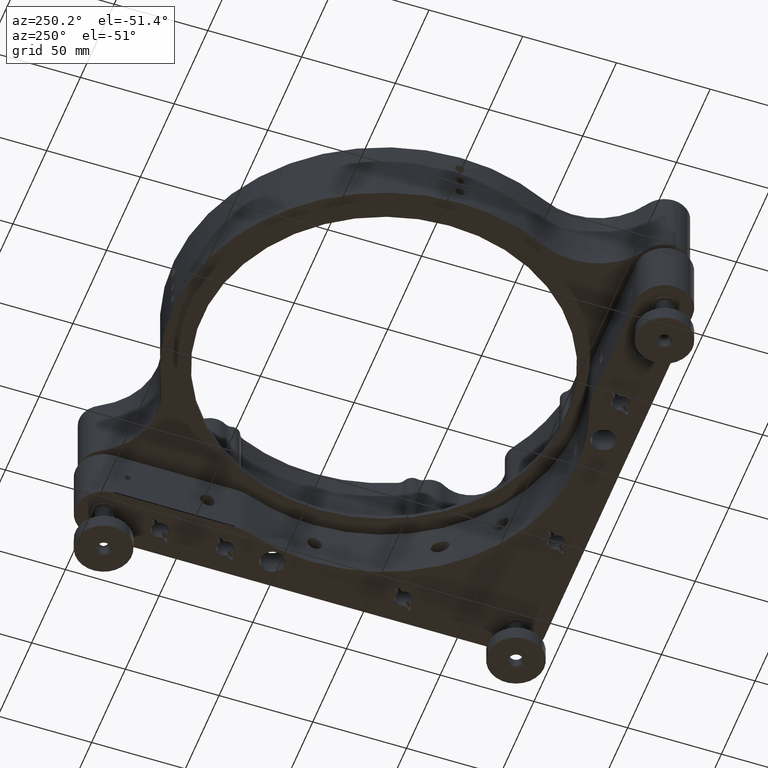
[diagram: clean part render]
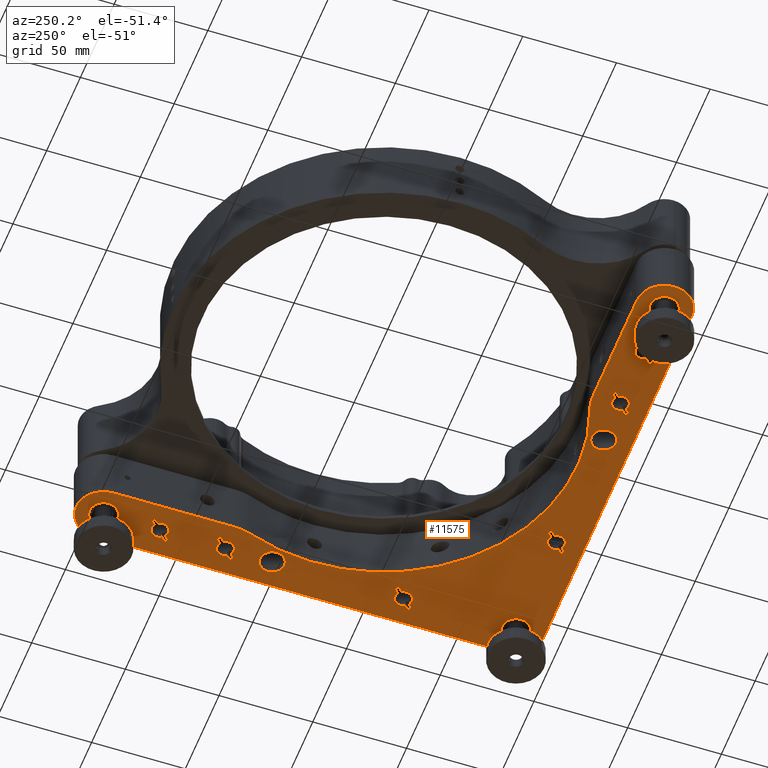
[diagram: same view with one face highlighted and labeled with its STEP entity id]
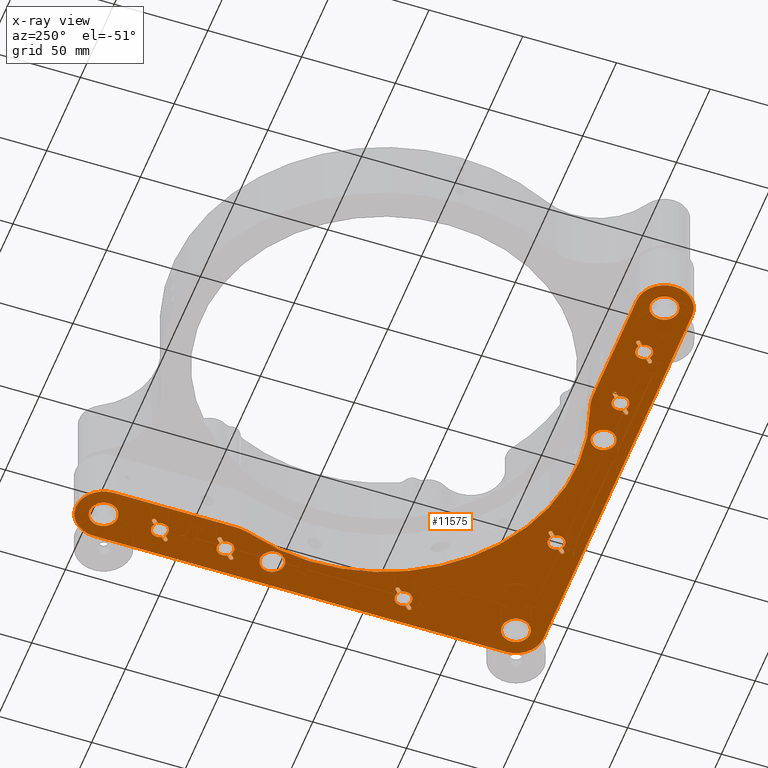
[diagram: x-ray of the same camera — body ghosted, the highlighted face saturated]
A machine part, auxiliary view. The second image highlights one B-rep face of the part: STEP entity #11575.
The next image is the same camera in x-ray: the body ghosted, the highlighted face saturated — about 0% of this face is hidden behind the body in this view.
In plain terms, the highlighted planar face has unit normal (-0, 0, 1).
Its self-contained STEP definition (entity closure, byte-faithful):
#10 = VERTEX_POINT ( 'NONE', #7336 ) ;
#85 = CARTESIAN_POINT ( 'NONE',  ( -15.00000000000001421, 249.6999999999999886, -15.00000000000000000 ) ) ;
#86 = CARTESIAN_POINT ( 'NONE',  ( -124.7999999999999261, 0.2999999999999114486, -15.00000000000000000 ) ) ;
#101 = DIRECTION ( 'NONE',  ( 0.7071067811865495711, -0.7071067811865454633, 0.000000000000000000 ) ) ;
#138 = CARTESIAN_POINT ( 'NONE',  ( -125.0000000000000000, 125.0000000000000000, -15.00000000000000000 ) ) ;
#161 = LINE ( 'NONE', #2393, #5314 ) ;
#179 = DIRECTION ( 'NONE',  ( -0.7071067811865463515, 0.7071067811865487940, 0.000000000000000000 ) ) ;
#192 = CARTESIAN_POINT ( 'NONE',  ( -169.9999999999999716, 14.99999999999998579, -15.00000000000000000 ) ) ;
#210 = CARTESIAN_POINT ( 'NONE',  ( -210.9290367901871832, 19.87903679018718250, -15.00000000000000000 ) ) ;
#211 = DIRECTION ( 'NONE',  ( 0.000000000000000000, -0.000000000000000000, -1.000000000000000000 ) ) ;
#214 = ORIENTED_EDGE ( 'NONE', *, *, #512, .F. ) ;
#238 = EDGE_CURVE ( 'NONE', #7865, #10826, #13938, .T. ) ;
#245 = DIRECTION ( 'NONE',  ( 0.000000000000000000, -0.000000000000000000, 1.000000000000000000 ) ) ;
#250 = ORIENTED_EDGE ( 'NONE', *, *, #3647, .F. ) ;
#252 = DIRECTION ( 'NONE',  ( 0.000000000000000000, 1.000000000000000000, 0.000000000000000000 ) ) ;
#276 = FACE_BOUND ( 'NONE', #2088, .T. ) ;
#278 = AXIS2_PLACEMENT_3D ( 'NONE', #11192, #9059, #489 ) ;
#290 = DIRECTION ( 'NONE',  ( -0.000000000000000000, 0.000000000000000000, -1.000000000000000000 ) ) ;
#298 = DIRECTION ( 'NONE',  ( 0.7071067811865460184, -0.7071067811865489050, -0.000000000000000000 ) ) ;
#315 = ORIENTED_EDGE ( 'NONE', *, *, #3157, .F. ) ;
#364 = CARTESIAN_POINT ( 'NONE',  ( -15.00000000000000000, 15.00000000000001421, -15.00000000000000000 ) ) ;
#379 = DIRECTION ( 'NONE',  ( 0.7071067811865457964, -0.7071067811865492381, -0.000000000000000000 ) ) ;
#380 = EDGE_CURVE ( 'NONE', #10838, #9235, #13728, .T. ) ;
#383 = VERTEX_POINT ( 'NONE', #7411 ) ;
#388 = ORIENTED_EDGE ( 'NONE', *, *, #8949, .F. ) ;
#437 = DIRECTION ( 'NONE',  ( -0.000000000000000000, 0.000000000000000000, 1.000000000000000000 ) ) ;
#453 = VERTEX_POINT ( 'NONE', #804 ) ;
#475 = VERTEX_POINT ( 'NONE', #13453 ) ;
#489 = DIRECTION ( 'NONE',  ( 0.000000000000000000, 1.000000000000000000, 0.000000000000000000 ) ) ;
#491 = DIRECTION ( 'NONE',  ( 0.000000000000000000, -0.000000000000000000, -1.000000000000000000 ) ) ;
#512 = EDGE_CURVE ( 'NONE', #5112, #13331, #10600, .T. ) ;
#532 = AXIS2_PLACEMENT_3D ( 'NONE', #9994, #10975, #9919 ) ;
#542 = CIRCLE ( 'NONE', #3535, 1.049999999999995381 ) ;
#581 = CARTESIAN_POINT ( 'NONE',  ( -125.0000000000000000, 0.2999999999999114486, -15.00000000000000000 ) ) ;
#607 = EDGE_CURVE ( 'NONE', #13331, #6922, #12715, .T. ) ;
#610 = CARTESIAN_POINT ( 'NONE',  ( -10.86342533005869804, 164.3785010895669814, -15.00000000000000000 ) ) ;
#637 = CIRCLE ( 'NONE', #9154, 4.500000000000003553 ) ;
#642 = VERTEX_POINT ( 'NONE', #6210 ) ;
#644 = EDGE_CURVE ( 'NONE', #2880, #8671, #2707, .T. ) ;
#660 = ORIENTED_EDGE ( 'NONE', *, *, #1453, .F. ) ;
#701 = DIRECTION ( 'NONE',  ( -0.000000000000000000, 0.000000000000000000, 1.000000000000000000 ) ) ;
#732 = DIRECTION ( 'NONE',  ( 0.000000000000000000, -0.000000000000000000, 1.000000000000000000 ) ) ;
#734 = EDGE_LOOP ( 'NONE', ( #8072, #13552, #2259, #10413, #3944, #4610, #12649, #12247, #10779, #1005, #3974 ) ) ;
#743 = CARTESIAN_POINT ( 'NONE',  ( -0.3000000000000363487, 235.0000000000000000, -15.00000000000000000 ) ) ;
#751 = VECTOR ( 'NONE', #6277, 1000.000000000000114 ) ;
#804 = CARTESIAN_POINT ( 'NONE',  ( -125.0000000000000000, 0.5000000000000004441, -15.00000000000000000 ) ) ;
#810 = AXIS2_PLACEMENT_3D ( 'NONE', #7517, #6150, #9609 ) ;
#811 = DIRECTION ( 'NONE',  ( -1.000000000000000000, 0.000000000000000000, 0.000000000000000000 ) ) ;
#816 = CARTESIAN_POINT ( 'NONE',  ( -19.13657466994132861, 80.62149891043310390, -15.00000000000000000 ) ) ;
#818 = CARTESIAN_POINT ( 'NONE',  ( -11.16339017804367195, 202.6483144185354774, -15.00000000000000000 ) ) ;
#827 = VERTEX_POINT ( 'NONE', #8616 ) ;
#837 = CARTESIAN_POINT ( 'NONE',  ( -7.500000000000002665, 15.00000000000001421, -15.00000000000000000 ) ) ;
#845 = CARTESIAN_POINT ( 'NONE',  ( -210.6214989104330471, 19.13657466994130019, -15.00000000000000000 ) ) ;
#849 = EDGE_CURVE ( 'NONE', #5012, #5336, #11746, .T. ) ;
#850 = CARTESIAN_POINT ( 'NONE',  ( -235.0000000000000000, 15.00000000000000000, -15.00000000000000000 ) ) ;
#860 = DIRECTION ( 'NONE',  ( -1.000000000000000000, 0.000000000000000000, 0.000000000000000000 ) ) ;
#864 = EDGE_CURVE ( 'NONE', #5776, #11075, #4005, .T. ) ;
#882 = CARTESIAN_POINT ( 'NONE',  ( -21.49999999999999289, 145.0000000000000568, -15.00000000000000000 ) ) ;
#883 = VERTEX_POINT ( 'NONE', #9472 ) ;
#917 = CARTESIAN_POINT ( 'NONE',  ( -165.8634253300587034, 9.378501089566920967, -15.00000000000000000 ) ) ;
#923 = DIRECTION ( 'NONE',  ( 0.000000000000000000, 1.000000000000000000, 0.000000000000000000 ) ) ;
#931 = CIRCLE ( 'NONE', #13106, 4.500000000000003553 ) ;
#953 = ORIENTED_EDGE ( 'NONE', *, *, #2015, .T. ) ;
#1005 = ORIENTED_EDGE ( 'NONE', *, *, #7511, .T. ) ;
#1053 = AXIS2_PLACEMENT_3D ( 'NONE', #12028, #7654, #7508 ) ;
#1072 = CARTESIAN_POINT ( 'NONE',  ( -27.91353383458644544, 160.2860891501454716, -15.00000000000000000 ) ) ;
#1087 = VERTEX_POINT ( 'NONE', #14107 ) ;
#1097 = ORIENTED_EDGE ( 'NONE', *, *, #2161, .T. ) ;
#1145 = DIRECTION ( 'NONE',  ( 0.000000000000000000, 1.000000000000000000, 0.000000000000000000 ) ) ;
#1177 = AXIS2_PLACEMENT_3D ( 'NONE', #11275, #290, #3538 ) ;
#1181 = CARTESIAN_POINT ( 'NONE',  ( -15.00000000000000000, 15.00000000000001421, -15.00000000000000000 ) ) ;
#1197 = CARTESIAN_POINT ( 'NONE',  ( -15.00000000000000000, 75.00000000000004263, -15.00000000000000000 ) ) ;
#1205 = CARTESIAN_POINT ( 'NONE',  ( -10.49999999999999289, 205.0000000000000568, -15.00000000000000000 ) ) ;
#1217 = DIRECTION ( 'NONE',  ( 1.000000000000000000, 0.000000000000000000, 0.000000000000000000 ) ) ;
#1234 = DIRECTION ( 'NONE',  ( -1.000000000000000000, 0.000000000000000000, 0.000000000000000000 ) ) ;
#1246 = DIRECTION ( 'NONE',  ( 1.000000000000000000, 0.000000000000000000, 0.000000000000000000 ) ) ;
#1248 = VERTEX_POINT ( 'NONE', #13798 ) ;
#1298 = CARTESIAN_POINT ( 'NONE',  ( -15.00000000000001421, 235.0000000000000000, -15.00000000000000000 ) ) ;
#1371 = CARTESIAN_POINT ( 'NONE',  ( -15.00000000000001421, 235.0000000000000000, -15.00000000000000000 ) ) ;
#1404 = CARTESIAN_POINT ( 'NONE',  ( -10.12096320981280329, 200.1209632098128850, -15.00000000000000000 ) ) ;
#1453 = EDGE_CURVE ( 'NONE', #7937, #6101, #4196, .T. ) ;
#1474 = CARTESIAN_POINT ( 'NONE',  ( -165.8634253300587034, 9.378501089566920967, -15.00000000000000000 ) ) ;
#1500 = CIRCLE ( 'NONE', #6340, 6.499999999999992006 ) ;
#1533 = EDGE_CURVE ( 'NONE', #8194, #3320, #9047, .T. ) ;
#1541 = ORIENTED_EDGE ( 'NONE', *, *, #12541, .T. ) ;
#1575 = FACE_BOUND ( 'NONE', #13316, .T. ) ;
#1583 = DIRECTION ( 'NONE',  ( 1.000000000000000000, 0.000000000000000000, 0.000000000000000000 ) ) ;
#1624 = VERTEX_POINT ( 'NONE', #13657 ) ;
#1635 = EDGE_CURVE ( 'NONE', #2023, #12483, #1726, .T. ) ;
#1642 = FACE_BOUND ( 'NONE', #12190, .T. ) ;
#1676 = VERTEX_POINT ( 'NONE', #8062 ) ;
#1705 = CARTESIAN_POINT ( 'NONE',  ( -12.64831441853545080, 201.1633901780437270, -15.00000000000000000 ) ) ;
#1709 = EDGE_CURVE ( 'NONE', #8671, #3676, #14067, .T. ) ;
#1725 = EDGE_CURVE ( 'NONE', #13512, #4751, #6372, .T. ) ;
#1726 = LINE ( 'NONE', #13724, #2384 ) ;
#1754 = CARTESIAN_POINT ( 'NONE',  ( -20.62149891043306482, 79.13657466994133927, -15.00000000000000000 ) ) ;
#1758 = VECTOR ( 'NONE', #8652, 1000.000000000000114 ) ;
#1762 = EDGE_CURVE ( 'NONE', #5893, #4391, #5463, .T. ) ;
#1768 = ORIENTED_EDGE ( 'NONE', *, *, #5701, .T. ) ;
#1778 = CARTESIAN_POINT ( 'NONE',  ( -8.500000000000007105, 145.0000000000000568, -15.00000000000000000 ) ) ;
#1784 = EDGE_CURVE ( 'NONE', #453, #12815, #8760, .T. ) ;
#1797 = ORIENTED_EDGE ( 'NONE', *, *, #12426, .F. ) ;
#1856 = CARTESIAN_POINT ( 'NONE',  ( -18.83660982195631206, 77.35168558146460782, -15.00000000000000000 ) ) ;
#1858 = LINE ( 'NONE', #845, #12297 ) ;
#1896 = DIRECTION ( 'NONE',  ( -0.000000000000000000, -0.000000000000000000, -1.000000000000000000 ) ) ;
#1930 = VERTEX_POINT ( 'NONE', #13128 ) ;
#1984 = AXIS2_PLACEMENT_3D ( 'NONE', #11589, #10380, #3970 ) ;
#2015 = EDGE_CURVE ( 'NONE', #8936, #14187, #2356, .T. ) ;
#2019 = CARTESIAN_POINT ( 'NONE',  ( -235.0000000000000000, 0.3000000000000224709, -15.00000000000000000 ) ) ;
#2023 = VERTEX_POINT ( 'NONE', #6433 ) ;
#2038 = EDGE_LOOP ( 'NONE', ( #9724, #7512 ) ) ;
#2040 = CIRCLE ( 'NONE', #11439, 4.500000000000003553 ) ;
#2053 = CARTESIAN_POINT ( 'NONE',  ( -0.3000000000000224709, 125.0000000000000000, -15.00000000000000000 ) ) ;
#2062 = DIRECTION ( 'NONE',  ( 0.000000000000000000, -0.000000000000000000, -1.000000000000000000 ) ) ;
#2088 = EDGE_LOOP ( 'NONE', ( #3764, #12092, #14088, #2260, #13902, #315, #7065, #5695, #5181, #250, #1797 ) ) ;
#2092 = CIRCLE ( 'NONE', #1177, 4.500000000000003553 ) ;
#2100 = DIRECTION ( 'NONE',  ( -0.7071067811865460184, 0.7071067811865489050, 0.000000000000000000 ) ) ;
#2108 = LINE ( 'NONE', #11866, #1758 ) ;
#2112 = ORIENTED_EDGE ( 'NONE', *, *, #10097, .F. ) ;
#2121 = LINE ( 'NONE', #2053, #6474 ) ;
#2132 = VERTEX_POINT ( 'NONE', #816 ) ;
#2150 = CARTESIAN_POINT ( 'NONE',  ( -29.69999999999994955, 170.4312667664021888, -15.00000000000000000 ) ) ;
#2161 = EDGE_CURVE ( 'NONE', #8845, #6243, #2040, .T. ) ;
#2169 = DIRECTION ( 'NONE',  ( 0.000000000000000000, 0.000000000000000000, -1.000000000000000000 ) ) ;
#2227 = CARTESIAN_POINT ( 'NONE',  ( -20.62149891043306482, 174.1365746699413251, -15.00000000000000000 ) ) ;
#2259 = ORIENTED_EDGE ( 'NONE', *, *, #13812, .T. ) ;
#2260 = ORIENTED_EDGE ( 'NONE', *, *, #1762, .F. ) ;
#2270 = CARTESIAN_POINT ( 'NONE',  ( -209.8790367901871434, 19.87903679018718250, -15.00000000000000000 ) ) ;
#2305 = EDGE_CURVE ( 'NONE', #12483, #3467, #4562, .T. ) ;
#2307 = ORIENTED_EDGE ( 'NONE', *, *, #9461, .F. ) ;
#2319 = CARTESIAN_POINT ( 'NONE',  ( -205.0000000000000000, 14.99999999999998579, -15.00000000000000000 ) ) ;
#2340 = DIRECTION ( 'NONE',  ( -1.000000000000000000, 0.000000000000000000, 0.000000000000000000 ) ) ;
#2348 = CARTESIAN_POINT ( 'NONE',  ( -164.3785010895669529, 10.86342533005868560, -15.00000000000000000 ) ) ;
#2350 = CARTESIAN_POINT ( 'NONE',  ( -20.92903679018721164, 209.8790367901872003, -15.00000000000000000 ) ) ;
#2354 = CARTESIAN_POINT ( 'NONE',  ( -227.4999999999999716, 15.00000000000000178, -15.00000000000000000 ) ) ;
#2356 = LINE ( 'NONE', #6724, #2941 ) ;
#2384 = VECTOR ( 'NONE', #11494, 1000.000000000000114 ) ;
#2393 = CARTESIAN_POINT ( 'NONE',  ( -9.378501089566935178, 165.8634253300587602, -15.00000000000000000 ) ) ;
#2404 = CARTESIAN_POINT ( 'NONE',  ( -235.0000000000000000, 29.70000000000003126, -15.00000000000000000 ) ) ;
#2407 = ORIENTED_EDGE ( 'NONE', *, *, #2963, .T. ) ;
#2411 = CARTESIAN_POINT ( 'NONE',  ( -209.8790367901871434, 19.87903679018718250, -15.00000000000000000 ) ) ;
#2416 = ORIENTED_EDGE ( 'NONE', *, *, #11910, .T. ) ;
#2442 = EDGE_CURVE ( 'NONE', #3398, #7385, #14016, .T. ) ;
#2458 = DIRECTION ( 'NONE',  ( 1.000000000000000000, 0.000000000000000000, 0.000000000000000000 ) ) ;
#2468 = CARTESIAN_POINT ( 'NONE',  ( -19.50000000000000355, 205.0000000000000568, -15.00000000000000000 ) ) ;
#2500 = DIRECTION ( 'NONE',  ( -1.000000000000000000, 0.000000000000000000, 0.000000000000000000 ) ) ;
#2518 = CARTESIAN_POINT ( 'NONE',  ( -208.8366098219563014, 17.35168558146454743, -15.00000000000000000 ) ) ;
#2523 = AXIS2_PLACEMENT_3D ( 'NONE', #364, #9140, #3743 ) ;
#2539 = ORIENTED_EDGE ( 'NONE', *, *, #1709, .T. ) ;
#2584 = EDGE_CURVE ( 'NONE', #10188, #2618, #9759, .T. ) ;
#2585 = CARTESIAN_POINT ( 'NONE',  ( -207.3516855814645510, 18.83660982195631206, -15.00000000000000000 ) ) ;
#2618 = VERTEX_POINT ( 'NONE', #13725 ) ;
#2649 = FACE_OUTER_BOUND ( 'NONE', #9992, .T. ) ;
#2669 = AXIS2_PLACEMENT_3D ( 'NONE', #4979, #9796, #5261 ) ;
#2680 = CIRCLE ( 'NONE', #9995, 1.049999999999995381 ) ;
#2692 = CIRCLE ( 'NONE', #10695, 1.050000000000023137 ) ;
#2707 = LINE ( 'NONE', #11469, #8100 ) ;
#2758 = DIRECTION ( 'NONE',  ( -0.000000000000000000, -0.000000000000000000, -1.000000000000000000 ) ) ;
#2788 = CARTESIAN_POINT ( 'NONE',  ( -15.00000000000000000, 170.0000000000000284, -15.00000000000000000 ) ) ;
#2815 = CARTESIAN_POINT ( 'NONE',  ( -72.64831441853544902, 11.16339017804368616, -15.00000000000000000 ) ) ;
#2830 = DIRECTION ( 'NONE',  ( 0.7071067811865492381, -0.7071067811865457964, 0.000000000000000000 ) ) ;
#2831 = AXIS2_PLACEMENT_3D ( 'NONE', #8662, #7427, #9591 ) ;
#2864 = CARTESIAN_POINT ( 'NONE',  ( -12.64831441853543659, 166.1633901780436986, -15.00000000000000000 ) ) ;
#2866 = DIRECTION ( 'NONE',  ( 0.000000000000000000, 0.000000000000000000, -1.000000000000000000 ) ) ;
#2880 = VERTEX_POINT ( 'NONE', #2150 ) ;
#2891 = CARTESIAN_POINT ( 'NONE',  ( -9.378501089566920967, 70.86342533005873179, -15.00000000000000000 ) ) ;
#2892 = VERTEX_POINT ( 'NONE', #10969 ) ;
#2896 = DIRECTION ( 'NONE',  ( -1.000000000000000000, 0.000000000000000000, 0.000000000000000000 ) ) ;
#2912 = CARTESIAN_POINT ( 'NONE',  ( 0.000000000000000000, 170.4312667664021888, -15.00000000000000000 ) ) ;
#2941 = VECTOR ( 'NONE', #14135, 1000.000000000000000 ) ;
#2955 = CARTESIAN_POINT ( 'NONE',  ( -12.64831441853542238, 71.16339017804374123, -15.00000000000000000 ) ) ;
#2956 = DIRECTION ( 'NONE',  ( -0.7071067811865492381, 0.7071067811865457964, 0.000000000000000000 ) ) ;
#2963 = EDGE_CURVE ( 'NONE', #13277, #5096, #3662, .T. ) ;
#3026 = DIRECTION ( 'NONE',  ( 0.7071067811865460184, -0.7071067811865489050, 0.000000000000000000 ) ) ;
#3029 = ORIENTED_EDGE ( 'NONE', *, *, #3146, .F. ) ;
#3051 = DIRECTION ( 'NONE',  ( 0.000000000000000000, 0.000000000000000000, 1.000000000000000000 ) ) ;
#3063 = CARTESIAN_POINT ( 'NONE',  ( -235.0000000000000000, 15.00000000000000000, -15.00000000000000000 ) ) ;
#3075 = ORIENTED_EDGE ( 'NONE', *, *, #4220, .T. ) ;
#3084 = VERTEX_POINT ( 'NONE', #5419 ) ;
#3118 = EDGE_CURVE ( 'NONE', #11000, #9699, #12681, .T. ) ;
#3126 = CIRCLE ( 'NONE', #5872, 1.050000000000023137 ) ;
#3133 = VECTOR ( 'NONE', #860, 1000.000000000000000 ) ;
#3141 = LINE ( 'NONE', #3361, #9628 ) ;
#3146 = EDGE_CURVE ( 'NONE', #5382, #475, #7644, .T. ) ;
#3151 = DIRECTION ( 'NONE',  ( -0.7071067811865492381, 0.7071067811865457964, 0.000000000000000000 ) ) ;
#3157 = EDGE_CURVE ( 'NONE', #2618, #10, #3748, .T. ) ;
#3165 = VERTEX_POINT ( 'NONE', #9664 ) ;
#3169 = AXIS2_PLACEMENT_3D ( 'NONE', #5274, #3051, #12560 ) ;
#3204 = EDGE_CURVE ( 'NONE', #11857, #7804, #2121, .T. ) ;
#3210 = VECTOR ( 'NONE', #3151, 1000.000000000000000 ) ;
#3241 = EDGE_CURVE ( 'NONE', #4419, #12722, #10164, .T. ) ;
#3250 = DIRECTION ( 'NONE',  ( -1.000000000000000000, 0.000000000000000000, 0.000000000000000000 ) ) ;
#3253 = AXIS2_PLACEMENT_3D ( 'NONE', #8683, #6437, #10812 ) ;
#3264 = CARTESIAN_POINT ( 'NONE',  ( -160.2860891501455001, 27.91353383458644544, -15.00000000000000000 ) ) ;
#3288 = VECTOR ( 'NONE', #6883, 1000.000000000000000 ) ;
#3320 = VERTEX_POINT ( 'NONE', #4628 ) ;
#3361 = CARTESIAN_POINT ( 'NONE',  ( -125.5000000000000000, 1.387778780781445676E-14, -15.00000000000000000 ) ) ;
#3373 = VECTOR ( 'NONE', #379, 1000.000000000000114 ) ;
#3382 = DIRECTION ( 'NONE',  ( -1.000000000000000000, 0.000000000000000000, 0.000000000000000000 ) ) ;
#3398 = VERTEX_POINT ( 'NONE', #11514 ) ;
#3405 = EDGE_CURVE ( 'NONE', #1676, #11565, #13837, .T. ) ;
#3467 = VERTEX_POINT ( 'NONE', #9291 ) ;
#3517 = CARTESIAN_POINT ( 'NONE',  ( -17.35168558146457585, 78.83660982195635825, -15.00000000000000000 ) ) ;
#3530 = LINE ( 'NONE', #6817, #3288 ) ;
#3535 = AXIS2_PLACEMENT_3D ( 'NONE', #4953, #437, #5900 ) ;
#3538 = DIRECTION ( 'NONE',  ( 1.000000000000000000, 0.000000000000000000, 0.000000000000000000 ) ) ;
#3550 = DIRECTION ( 'NONE',  ( -0.000000000000000000, 0.000000000000000000, -1.000000000000000000 ) ) ;
#3560 = CIRCLE ( 'NONE', #5369, 1.050000000000023137 ) ;
#3574 = CIRCLE ( 'NONE', #12726, 103.3000000000000398 ) ;
#3577 = EDGE_CURVE ( 'NONE', #3084, #10188, #5324, .T. ) ;
#3598 = FACE_BOUND ( 'NONE', #12132, .T. ) ;
#3604 = CIRCLE ( 'NONE', #7244, 1.050000000000023137 ) ;
#3615 = VECTOR ( 'NONE', #13925, 1000.000000000000114 ) ;
#3621 = CARTESIAN_POINT ( 'NONE',  ( -200.8634253300586749, 9.378501089566906757, -15.00000000000000000 ) ) ;
#3647 = EDGE_CURVE ( 'NONE', #642, #2892, #13447, .T. ) ;
#3658 = AXIS2_PLACEMENT_3D ( 'NONE', #5788, #13410, #12179 ) ;
#3662 = LINE ( 'NONE', #8112, #12985 ) ;
#3676 = VERTEX_POINT ( 'NONE', #85 ) ;
#3681 = VECTOR ( 'NONE', #7823, 1000.000000000000000 ) ;
#3691 = VERTEX_POINT ( 'NONE', #3621 ) ;
#3696 = ORIENTED_EDGE ( 'NONE', *, *, #3204, .T. ) ;
#3743 = DIRECTION ( 'NONE',  ( 1.000000000000000000, 0.000000000000000000, 0.000000000000000000 ) ) ;
#3748 = CIRCLE ( 'NONE', #2831, 4.500000000000003553 ) ;
#3764 = ORIENTED_EDGE ( 'NONE', *, *, #8139, .F. ) ;
#3774 = CARTESIAN_POINT ( 'NONE',  ( -15.00000000000000000, 145.0000000000000568, -15.00000000000000000 ) ) ;
#3792 = PLANE ( 'NONE',  #7828 ) ;
#3817 = EDGE_CURVE ( 'NONE', #9891, #3398, #542, .T. ) ;
#3920 = AXIS2_PLACEMENT_3D ( 'NONE', #4880, #12285, #2458 ) ;
#3925 = AXIS2_PLACEMENT_3D ( 'NONE', #10682, #701, #6026 ) ;
#3933 = ORIENTED_EDGE ( 'NONE', *, *, #5442, .T. ) ;
#3944 = ORIENTED_EDGE ( 'NONE', *, *, #8818, .T. ) ;
#3965 = AXIS2_PLACEMENT_3D ( 'NONE', #4678, #8850, #5608 ) ;
#3966 = ORIENTED_EDGE ( 'NONE', *, *, #5888, .F. ) ;
#3970 = DIRECTION ( 'NONE',  ( 2.312964634635740492E-16, -1.000000000000000000, 0.000000000000000000 ) ) ;
#3974 = ORIENTED_EDGE ( 'NONE', *, *, #3118, .T. ) ;
#3990 = CARTESIAN_POINT ( 'NONE',  ( -0.2999999999999114486, 124.7999999999999829, -15.00000000000000000 ) ) ;
#3998 = DIRECTION ( 'NONE',  ( 0.7071067811865492381, -0.7071067811865457964, 0.000000000000000000 ) ) ;
#3999 = ORIENTED_EDGE ( 'NONE', *, *, #13935, .T. ) ;
#4005 = LINE ( 'NONE', #917, #4867 ) ;
#4037 = VERTEX_POINT ( 'NONE', #2585 ) ;
#4038 = CIRCLE ( 'NONE', #12069, 6.500000000000005329 ) ;
#4044 = ORIENTED_EDGE ( 'NONE', *, *, #2442, .T. ) ;
#4062 = DIRECTION ( 'NONE',  ( 1.000000000000000000, 0.000000000000000000, 0.000000000000000000 ) ) ;
#4103 = CARTESIAN_POINT ( 'NONE',  ( -70.86342533005870337, 9.378501089566935178, -15.00000000000000000 ) ) ;
#4133 = DIRECTION ( 'NONE',  ( 0.7071067811865513475, 0.7071067811865436870, 0.000000000000000000 ) ) ;
#4147 = VECTOR ( 'NONE', #11710, 1000.000000000000000 ) ;
#4196 = CIRCLE ( 'NONE', #3965, 7.500000000000007105 ) ;
#4195 = CARTESIAN_POINT ( 'NONE',  ( -0.3000000000000224709, 125.2000000000000313, -15.00000000000000000 ) ) ;
#4207 = DIRECTION ( 'NONE',  ( -3.854941057726235139E-16, 1.000000000000000000, 0.000000000000000000 ) ) ;
#4220 = EDGE_CURVE ( 'NONE', #11385, #9846, #9612, .T. ) ;
#4250 = CARTESIAN_POINT ( 'NONE',  ( -15.00000000000000000, 205.0000000000000568, -15.00000000000000000 ) ) ;
#4257 = AXIS2_PLACEMENT_3D ( 'NONE', #3063, #2062, #12103 ) ;
#4269 = DIRECTION ( 'NONE',  ( -0.000000000000000000, 0.000000000000000000, 1.000000000000000000 ) ) ;
#4290 = VECTOR ( 'NONE', #10277, 1000.000000000000000 ) ;
#4316 = VERTEX_POINT ( 'NONE', #8607 ) ;
#4338 = CARTESIAN_POINT ( 'NONE',  ( -164.3785010895669529, 10.86342533005868560, -15.00000000000000000 ) ) ;
#4351 = VERTEX_POINT ( 'NONE', #1205 ) ;
#4391 = VERTEX_POINT ( 'NONE', #13131 ) ;
#4393 = CIRCLE ( 'NONE', #3925, 4.500000000000003553 ) ;
#4418 = AXIS2_PLACEMENT_3D ( 'NONE', #6421, #9668, #8525 ) ;
#4419 = VERTEX_POINT ( 'NONE', #14136 ) ;
#4420 = ORIENTED_EDGE ( 'NONE', *, *, #13412, .T. ) ;
#4446 = DIRECTION ( 'NONE',  ( -0.000000000000000000, 0.000000000000000000, 1.000000000000000000 ) ) ;
#4481 = VERTEX_POINT ( 'NONE', #3517 ) ;
#4508 = EDGE_CURVE ( 'NONE', #7913, #7335, #13439, .T. ) ;
#4549 = AXIS2_PLACEMENT_3D ( 'NONE', #7605, #9990, #3382 ) ;
#4559 = ORIENTED_EDGE ( 'NONE', *, *, #13285, .T. ) ;
#4562 = CIRCLE ( 'NONE', #8237, 4.500000000000003553 ) ;
#4576 = DIRECTION ( 'NONE',  ( 1.000000000000000000, 0.000000000000000000, 0.000000000000000000 ) ) ;
#4610 = ORIENTED_EDGE ( 'NONE', *, *, #10606, .T. ) ;
#4622 = DIRECTION ( 'NONE',  ( 3.854941057726235139E-16, -1.000000000000000000, 0.000000000000000000 ) ) ;
#4628 = CARTESIAN_POINT ( 'NONE',  ( -20.92903679018719743, 174.8790367901871718, -15.00000000000000000 ) ) ;
#4655 = EDGE_CURVE ( 'NONE', #7920, #4316, #12046, .T. ) ;
#4676 = AXIS2_PLACEMENT_3D ( 'NONE', #7767, #10284, #4883 ) ;
#4678 = CARTESIAN_POINT ( 'NONE',  ( -15.00000000000002665, 235.0000000000000284, -15.00000000000000000 ) ) ;
#4693 = EDGE_CURVE ( 'NONE', #10138, #6267, #14132, .T. ) ;
#4706 = LINE ( 'NONE', #1474, #8841 ) ;
#4719 = CARTESIAN_POINT ( 'NONE',  ( -175.6214989104330471, 19.13657466994128598, -15.00000000000000000 ) ) ;
#4736 = CARTESIAN_POINT ( 'NONE',  ( -125.0000000000000000, 125.0000000000000000, -15.00000000000000000 ) ) ;
#4743 = EDGE_CURVE ( 'NONE', #5336, #11385, #7950, .T. ) ;
#4749 = ORIENTED_EDGE ( 'NONE', *, *, #849, .T. ) ;
#4751 = VERTEX_POINT ( 'NONE', #5356 ) ;
#4779 = CARTESIAN_POINT ( 'NONE',  ( -210.6214989104330471, 19.13657466994130019, -15.00000000000000000 ) ) ;
#4798 = CARTESIAN_POINT ( 'NONE',  ( -205.0000000000000000, 14.99999999999998579, -15.00000000000000000 ) ) ;
#4819 = AXIS2_PLACEMENT_3D ( 'NONE', #1197, #5575, #4207 ) ;
#4849 = ORIENTED_EDGE ( 'NONE', *, *, #10760, .T. ) ;
#4858 = CIRCLE ( 'NONE', #13345, 4.500000000000003553 ) ;
#4866 = FACE_BOUND ( 'NONE', #10373, .T. ) ;
#4867 = VECTOR ( 'NONE', #9690, 1000.000000000000000 ) ;
#4880 = CARTESIAN_POINT ( 'NONE',  ( -169.9999999999999716, 14.99999999999998579, -15.00000000000000000 ) ) ;
#4883 = DIRECTION ( 'NONE',  ( 0.000000000000000000, 1.000000000000000000, 0.000000000000000000 ) ) ;
#4920 = CARTESIAN_POINT ( 'NONE',  ( -10.86342533005869804, 164.3785010895669814, -15.00000000000000000 ) ) ;
#4953 = CARTESIAN_POINT ( 'NONE',  ( -10.12096320981280329, 70.12096320981287079, -15.00000000000000000 ) ) ;
#4972 = CARTESIAN_POINT ( 'NONE',  ( -15.00000000000000000, 75.00000000000004263, -15.00000000000000000 ) ) ;
#4979 = CARTESIAN_POINT ( 'NONE',  ( -19.87903679018719671, 79.87903679018722869, -15.00000000000000000 ) ) ;
#4985 = AXIS2_PLACEMENT_3D ( 'NONE', #7797, #13256, #12734 ) ;
#4999 = VECTOR ( 'NONE', #6664, 1000.000000000000000 ) ;
#5012 = VERTEX_POINT ( 'NONE', #2019 ) ;
#5036 = DIRECTION ( 'NONE',  ( -0.000000000000000000, 0.000000000000000000, 1.000000000000000000 ) ) ;
#5045 = ORIENTED_EDGE ( 'NONE', *, *, #4655, .F. ) ;
#5069 = CIRCLE ( 'NONE', #3253, 29.69999999999997797 ) ;
#5071 = CIRCLE ( 'NONE', #11734, 1.049999999999995381 ) ;
#5096 = VERTEX_POINT ( 'NONE', #9845 ) ;
#5112 = VERTEX_POINT ( 'NONE', #14224 ) ;
#5181 = ORIENTED_EDGE ( 'NONE', *, *, #12764, .F. ) ;
#5188 = CIRCLE ( 'NONE', #1984, 7.500000000000007105 ) ;
#5259 = LINE ( 'NONE', #10709, #6144 ) ;
#5261 = DIRECTION ( 'NONE',  ( 0.000000000000000000, 1.000000000000000000, 0.000000000000000000 ) ) ;
#5271 = ORIENTED_EDGE ( 'NONE', *, *, #10964, .F. ) ;
#5274 = CARTESIAN_POINT ( 'NONE',  ( -15.00000000000000000, 15.00000000000001421, -15.00000000000000000 ) ) ;
#5281 = CARTESIAN_POINT ( 'NONE',  ( -138.5000000000000000, 15.00000000000001421, -15.00000000000000000 ) ) ;
#5294 = EDGE_CURVE ( 'NONE', #12722, #883, #11487, .T. ) ;
#5314 = VECTOR ( 'NONE', #13091, 1000.000000000000114 ) ;
#5324 = LINE ( 'NONE', #4103, #13158 ) ;
#5336 = VERTEX_POINT ( 'NONE', #9888 ) ;
#5338 = AXIS2_PLACEMENT_3D ( 'NONE', #5809, #10202, #8049 ) ;
#5356 = CARTESIAN_POINT ( 'NONE',  ( -151.5000000000000284, 15.00000000000001421, -15.00000000000000000 ) ) ;
#5362 = VECTOR ( 'NONE', #13773, 1000.000000000000000 ) ;
#5369 = AXIS2_PLACEMENT_3D ( 'NONE', #8450, #8308, #6134 ) ;
#5379 = CARTESIAN_POINT ( 'NONE',  ( -174.8790367901871434, 19.87903679018716829, -15.00000000000000000 ) ) ;
#5382 = VERTEX_POINT ( 'NONE', #10946 ) ;
#5384 = DIRECTION ( 'NONE',  ( 0.000000000000000000, -0.000000000000000000, 1.000000000000000000 ) ) ;
#5419 = CARTESIAN_POINT ( 'NONE',  ( -70.86342533005870337, 9.378501089566935178, -15.00000000000000000 ) ) ;
#5442 = EDGE_CURVE ( 'NONE', #7804, #4419, #13118, .T. ) ;
#5463 = CIRCLE ( 'NONE', #13953, 1.049999999999995381 ) ;
#5530 = CARTESIAN_POINT ( 'NONE',  ( -17.35168558146456164, 208.8366098219563298, -15.00000000000000000 ) ) ;
#5550 = AXIS2_PLACEMENT_3D ( 'NONE', #850, #7454, #12845 ) ;
#5552 = AXIS2_PLACEMENT_3D ( 'NONE', #6589, #10972, #1145 ) ;
#5575 = DIRECTION ( 'NONE',  ( -0.000000000000000000, 0.000000000000000000, 1.000000000000000000 ) ) ;
#5580 = EDGE_CURVE ( 'NONE', #4391, #6755, #2680, .T. ) ;
#5595 = CARTESIAN_POINT ( 'NONE',  ( -242.5000000000000000, 15.00000000000000000, -15.00000000000000000 ) ) ;
#5606 = EDGE_CURVE ( 'NONE', #5731, #12639, #1500, .T. ) ;
#5608 = DIRECTION ( 'NONE',  ( 2.312964634635740492E-16, -1.000000000000000000, 0.000000000000000000 ) ) ;
#5636 = CARTESIAN_POINT ( 'NONE',  ( -200.4999999999999716, 14.99999999999998579, -15.00000000000000000 ) ) ;
#5657 = VECTOR ( 'NONE', #7130, 1000.000000000000114 ) ;
#5662 = EDGE_CURVE ( 'NONE', #6101, #7937, #5188, .T. ) ;
#5695 = ORIENTED_EDGE ( 'NONE', *, *, #3577, .F. ) ;
#5701 = EDGE_CURVE ( 'NONE', #2132, #7697, #9777, .T. ) ;
#5709 = DIRECTION ( 'NONE',  ( -0.000000000000000000, 0.000000000000000000, 1.000000000000000000 ) ) ;
#5713 = CARTESIAN_POINT ( 'NONE',  ( -10.86342533005867139, 69.37850108956699557, -15.00000000000000000 ) ) ;
#5731 = VERTEX_POINT ( 'NONE', #882 ) ;
#5733 = CIRCLE ( 'NONE', #4819, 4.500000000000003553 ) ;
#5765 = EDGE_CURVE ( 'NONE', #10, #5893, #2108, .T. ) ;
#5776 = VERTEX_POINT ( 'NONE', #10020 ) ;
#5782 = ORIENTED_EDGE ( 'NONE', *, *, #3405, .T. ) ;
#5783 = DIRECTION ( 'NONE',  ( -0.7071067811865492381, 0.7071067811865457964, 0.000000000000000000 ) ) ;
#5787 = CIRCLE ( 'NONE', #278, 1.050000000000023137 ) ;
#5788 = CARTESIAN_POINT ( 'NONE',  ( -205.0000000000000000, 14.99999999999998579, -15.00000000000000000 ) ) ;
#5809 = CARTESIAN_POINT ( 'NONE',  ( -205.0000000000000000, 14.99999999999998579, -15.00000000000000000 ) ) ;
#5817 = ORIENTED_EDGE ( 'NONE', *, *, #11003, .F. ) ;
#5860 = ORIENTED_EDGE ( 'NONE', *, *, #5294, .T. ) ;
#5862 = DIRECTION ( 'NONE',  ( 0.000000000000000000, 0.000000000000000000, -1.000000000000000000 ) ) ;
#5869 = EDGE_CURVE ( 'NONE', #4751, #13512, #4038, .T. ) ;
#5872 = AXIS2_PLACEMENT_3D ( 'NONE', #1404, #5709, #252 ) ;
#5888 = EDGE_CURVE ( 'NONE', #1624, #10138, #7853, .T. ) ;
#5893 = VERTEX_POINT ( 'NONE', #11145 ) ;
#5900 = DIRECTION ( 'NONE',  ( 0.000000000000000000, 1.000000000000000000, 0.000000000000000000 ) ) ;
#5902 = ORIENTED_EDGE ( 'NONE', *, *, #12041, .T. ) ;
#5955 = CIRCLE ( 'NONE', #8961, 4.500000000000003553 ) ;
#5965 = CIRCLE ( 'NONE', #11468, 1.050000000000023137 ) ;
#5994 = LINE ( 'NONE', #4920, #8975 ) ;
#6009 = DIRECTION ( 'NONE',  ( 1.000000000000000000, 0.000000000000000000, 0.000000000000000000 ) ) ;
#6026 = DIRECTION ( 'NONE',  ( -3.854941057726235139E-16, 1.000000000000000000, 0.000000000000000000 ) ) ;
#6044 = EDGE_CURVE ( 'NONE', #7314, #5012, #13080, .T. ) ;
#6077 = DIRECTION ( 'NONE',  ( 0.000000000000000000, 0.000000000000000000, 1.000000000000000000 ) ) ;
#6101 = VERTEX_POINT ( 'NONE', #12858 ) ;
#6121 = VECTOR ( 'NONE', #12979, 1000.000000000000114 ) ;
#6122 = CARTESIAN_POINT ( 'NONE',  ( -69.37850108956695294, 10.86342533005868560, -15.00000000000000000 ) ) ;
#6134 = DIRECTION ( 'NONE',  ( 0.000000000000000000, 1.000000000000000000, 0.000000000000000000 ) ) ;
#6144 = VECTOR ( 'NONE', #2830, 1000.000000000000000 ) ;
#6150 = DIRECTION ( 'NONE',  ( 0.000000000000000000, 0.000000000000000000, -1.000000000000000000 ) ) ;
#6154 = LINE ( 'NONE', #10540, #7403 ) ;
#6184 = ORIENTED_EDGE ( 'NONE', *, *, #3241, .T. ) ;
#6210 = CARTESIAN_POINT ( 'NONE',  ( -71.16339017804368439, 12.64831441853543659, -15.00000000000000000 ) ) ;
#6220 = DIRECTION ( 'NONE',  ( 0.000000000000000000, -0.000000000000000000, 1.000000000000000000 ) ) ;
#6233 = CARTESIAN_POINT ( 'NONE',  ( -165.4999999999999716, 14.99999999999998579, -15.00000000000000000 ) ) ;
#6243 = VERTEX_POINT ( 'NONE', #2864 ) ;
#6267 = VERTEX_POINT ( 'NONE', #12500 ) ;
#6277 = DIRECTION ( 'NONE',  ( 0.7071067811865457964, -0.7071067811865492381, -0.000000000000000000 ) ) ;
#6335 = EDGE_CURVE ( 'NONE', #3691, #7956, #1858, .T. ) ;
#6340 = AXIS2_PLACEMENT_3D ( 'NONE', #3774, #1896, #811 ) ;
#6372 = CIRCLE ( 'NONE', #4549, 6.500000000000005329 ) ;
#6376 = LINE ( 'NONE', #12999, #3210 ) ;
#6396 = ORIENTED_EDGE ( 'NONE', *, *, #8732, .F. ) ;
#6415 = DIRECTION ( 'NONE',  ( 5.551115123125782702E-17, -1.000000000000000000, 0.000000000000000000 ) ) ;
#6421 = CARTESIAN_POINT ( 'NONE',  ( -15.00000000000000000, 205.0000000000000568, -15.00000000000000000 ) ) ;
#6433 = CARTESIAN_POINT ( 'NONE',  ( -9.378501089566935178, 165.8634253300587602, -15.00000000000000000 ) ) ;
#6437 = DIRECTION ( 'NONE',  ( 0.000000000000000000, -0.000000000000000000, -1.000000000000000000 ) ) ;
#6456 = ORIENTED_EDGE ( 'NONE', *, *, #6335, .F. ) ;
#6473 = ORIENTED_EDGE ( 'NONE', *, *, #12412, .T. ) ;
#6474 = VECTOR ( 'NONE', #6415, 1000.000000000000000 ) ;
#6512 = EDGE_LOOP ( 'NONE', ( #8348, #3029, #2307, #5817, #9082, #13104, #9982, #10042, #11325, #3966, #11851 ) ) ;
#6557 = CARTESIAN_POINT ( 'NONE',  ( -19.87903679018719671, 209.8790367901872003, -15.00000000000000000 ) ) ;
#6589 = CARTESIAN_POINT ( 'NONE',  ( -10.12096320981281750, 165.1209632098128850, -15.00000000000000000 ) ) ;
#6606 = CARTESIAN_POINT ( 'NONE',  ( -75.00000000000000000, 15.00000000000001421, -15.00000000000000000 ) ) ;
#6632 = DIRECTION ( 'NONE',  ( 0.000000000000000000, 0.000000000000000000, -1.000000000000000000 ) ) ;
#6664 = DIRECTION ( 'NONE',  ( 0.7071067811865456854, -0.7071067811865493491, -0.000000000000000000 ) ) ;
#6678 = ORIENTED_EDGE ( 'NONE', *, *, #1533, .T. ) ;
#6703 = CARTESIAN_POINT ( 'NONE',  ( -200.1209632098128282, 10.12096320981278907, -15.00000000000000000 ) ) ;
#6724 = CARTESIAN_POINT ( 'NONE',  ( -10.86342533005867139, 69.37850108956699557, -15.00000000000000000 ) ) ;
#6737 = CARTESIAN_POINT ( 'NONE',  ( -202.6483144185354206, 11.16339017804365774, -15.00000000000000000 ) ) ;
#6755 = VERTEX_POINT ( 'NONE', #8881 ) ;
#6756 = EDGE_CURVE ( 'NONE', #3467, #9247, #11424, .T. ) ;
#6779 = DIRECTION ( 'NONE',  ( 0.000000000000000000, 0.000000000000000000, -1.000000000000000000 ) ) ;
#6807 = DIRECTION ( 'NONE',  ( 1.000000000000000000, 0.000000000000000000, 0.000000000000000000 ) ) ;
#6814 = DIRECTION ( 'NONE',  ( -1.000000000000000000, 0.000000000000000000, 0.000000000000000000 ) ) ;
#6817 = CARTESIAN_POINT ( 'NONE',  ( -9.378501089566920967, 70.86342533005873179, -15.00000000000000000 ) ) ;
#6883 = DIRECTION ( 'NONE',  ( -0.7071067811865492381, 0.7071067811865457964, 0.000000000000000000 ) ) ;
#6916 = CARTESIAN_POINT ( 'NONE',  ( -10.49999999999999822, 75.00000000000004263, -15.00000000000000000 ) ) ;
#6917 = EDGE_CURVE ( 'NONE', #12117, #1930, #11379, .T. ) ;
#6918 = CARTESIAN_POINT ( 'NONE',  ( -19.50000000000000355, 170.0000000000000284, -15.00000000000000000 ) ) ;
#6922 = VERTEX_POINT ( 'NONE', #4779 ) ;
#6945 = FACE_BOUND ( 'NONE', #11971, .T. ) ;
#6956 = CARTESIAN_POINT ( 'NONE',  ( -0.2999999999999114486, 125.0000000000000000, -15.00000000000000000 ) ) ;
#7045 = EDGE_CURVE ( 'NONE', #12671, #1087, #5259, .T. ) ;
#7065 = ORIENTED_EDGE ( 'NONE', *, *, #2584, .F. ) ;
#7130 = DIRECTION ( 'NONE',  ( 0.7071067811865460184, -0.7071067811865489050, -0.000000000000000000 ) ) ;
#7151 = EDGE_CURVE ( 'NONE', #4351, #12117, #637, .T. ) ;
#7212 = DIRECTION ( 'NONE',  ( 0.000000000000000000, -0.000000000000000000, -1.000000000000000000 ) ) ;
#7234 = AXIS2_PLACEMENT_3D ( 'NONE', #2912, #7212, #9380 ) ;
#7244 = AXIS2_PLACEMENT_3D ( 'NONE', #2411, #6779, #11159 ) ;
#7273 = CARTESIAN_POINT ( 'NONE',  ( -79.87903679018718606, 19.87903679018721093, -15.00000000000000000 ) ) ;
#7314 = VERTEX_POINT ( 'NONE', #10955 ) ;
#7335 = VERTEX_POINT ( 'NONE', #2354 ) ;
#7336 = CARTESIAN_POINT ( 'NONE',  ( -78.83660982195631561, 17.35168558146457585, -15.00000000000000000 ) ) ;
#7385 = VERTEX_POINT ( 'NONE', #12334 ) ;
#7388 = AXIS2_PLACEMENT_3D ( 'NONE', #2319, #3550, #1246 ) ;
#7403 = VECTOR ( 'NONE', #3998, 1000.000000000000000 ) ;
#7411 = CARTESIAN_POINT ( 'NONE',  ( -77.35168558146455098, 18.83660982195632627, -15.00000000000000000 ) ) ;
#7427 = DIRECTION ( 'NONE',  ( 0.000000000000000000, 0.000000000000000000, -1.000000000000000000 ) ) ;
#7454 = DIRECTION ( 'NONE',  ( 0.000000000000000000, -0.000000000000000000, -1.000000000000000000 ) ) ;
#7508 = DIRECTION ( 'NONE',  ( -1.000000000000000000, 0.000000000000000000, 0.000000000000000000 ) ) ;
#7511 = EDGE_CURVE ( 'NONE', #1930, #11000, #3560, .T. ) ;
#7512 = ORIENTED_EDGE ( 'NONE', *, *, #10808, .T. ) ;
#7517 = CARTESIAN_POINT ( 'NONE',  ( -75.00000000000000000, 15.00000000000001421, -15.00000000000000000 ) ) ;
#7523 = AXIS2_PLACEMENT_3D ( 'NONE', #4250, #732, #13949 ) ;
#7562 = ORIENTED_EDGE ( 'NONE', *, *, #1635, .T. ) ;
#7574 = DIRECTION ( 'NONE',  ( 1.000000000000000000, 0.000000000000000000, 0.000000000000000000 ) ) ;
#7605 = CARTESIAN_POINT ( 'NONE',  ( -145.0000000000000284, 15.00000000000001421, -15.00000000000000000 ) ) ;
#7632 = EDGE_CURVE ( 'NONE', #883, #8667, #13662, .T. ) ;
#7644 = LINE ( 'NONE', #4338, #751 ) ;
#7654 = DIRECTION ( 'NONE',  ( 0.000000000000000000, 0.000000000000000000, -1.000000000000000000 ) ) ;
#7697 = VERTEX_POINT ( 'NONE', #10938 ) ;
#7763 = CARTESIAN_POINT ( 'NONE',  ( -15.00000000000000000, 170.0000000000000284, -15.00000000000000000 ) ) ;
#7767 = CARTESIAN_POINT ( 'NONE',  ( -19.87903679018718250, 174.8790367901871718, -15.00000000000000000 ) ) ;
#7770 = ORIENTED_EDGE ( 'NONE', *, *, #238, .T. ) ;
#7797 = CARTESIAN_POINT ( 'NONE',  ( -15.00000000000000000, 170.0000000000000284, -15.00000000000000000 ) ) ;
#7804 = VERTEX_POINT ( 'NONE', #4195 ) ;
#7815 = VERTEX_POINT ( 'NONE', #6916 ) ;
#7820 = EDGE_CURVE ( 'NONE', #6267, #1248, #4706, .T. ) ;
#7823 = DIRECTION ( 'NONE',  ( 0.7071067811865492381, -0.7071067811865457964, 0.000000000000000000 ) ) ;
#7828 = AXIS2_PLACEMENT_3D ( 'NONE', #4736, #13426, #6009 ) ;
#7853 = LINE ( 'NONE', #12445, #3373 ) ;
#7865 = VERTEX_POINT ( 'NONE', #9292 ) ;
#7894 = AXIS2_PLACEMENT_3D ( 'NONE', #1298, #211, #1217 ) ;
#7906 = EDGE_CURVE ( 'NONE', #11272, #13808, #3574, .T. ) ;
#7913 = VERTEX_POINT ( 'NONE', #5595 ) ;
#7920 = VERTEX_POINT ( 'NONE', #210 ) ;
#7921 = CARTESIAN_POINT ( 'NONE',  ( -69.37850108956695294, 10.86342533005868560, -15.00000000000000000 ) ) ;
#7937 = VERTEX_POINT ( 'NONE', #9989 ) ;
#7939 = CARTESIAN_POINT ( 'NONE',  ( -1.387778780781445676E-14, 124.5000000000000853, -15.00000000000000000 ) ) ;
#7950 = CIRCLE ( 'NONE', #4257, 14.69999999999999041 ) ;
#7956 = VERTEX_POINT ( 'NONE', #6737 ) ;
#7957 = AXIS2_PLACEMENT_3D ( 'NONE', #6703, #6632, #2340 ) ;
#7969 = AXIS2_PLACEMENT_3D ( 'NONE', #12806, #2758, #2896 ) ;
#7974 = FACE_BOUND ( 'NONE', #2038, .T. ) ;
#8032 = CARTESIAN_POINT ( 'NONE',  ( -199.3785010895669245, 10.86342533005867139, -15.00000000000000000 ) ) ;
#8039 = DIRECTION ( 'NONE',  ( -0.000000000000000000, 0.000000000000000000, -1.000000000000000000 ) ) ;
#8042 = FACE_BOUND ( 'NONE', #6512, .T. ) ;
#8049 = DIRECTION ( 'NONE',  ( 1.000000000000000000, 0.000000000000000000, 0.000000000000000000 ) ) ;
#8062 = CARTESIAN_POINT ( 'NONE',  ( -19.50000000000000000, 75.00000000000004263, -15.00000000000000000 ) ) ;
#8063 = VERTEX_POINT ( 'NONE', #9258 ) ;
#8072 = ORIENTED_EDGE ( 'NONE', *, *, #14129, .T. ) ;
#8096 = CARTESIAN_POINT ( 'NONE',  ( -174.8790367901871434, 19.87903679018716829, -15.00000000000000000 ) ) ;
#8100 = VECTOR ( 'NONE', #13762, 1000.000000000000000 ) ;
#8112 = CARTESIAN_POINT ( 'NONE',  ( -10.86342533005869804, 164.3785010895669814, -15.00000000000000000 ) ) ;
#8139 = EDGE_CURVE ( 'NONE', #383, #13460, #9306, .T. ) ;
#8141 = ORIENTED_EDGE ( 'NONE', *, *, #6044, .T. ) ;
#8160 = DIRECTION ( 'NONE',  ( 0.000000000000000000, 0.000000000000000000, -1.000000000000000000 ) ) ;
#8194 = VERTEX_POINT ( 'NONE', #11824 ) ;
#8237 = AXIS2_PLACEMENT_3D ( 'NONE', #2788, #6220, #11544 ) ;
#8267 = ORIENTED_EDGE ( 'NONE', *, *, #10404, .T. ) ;
#8292 = LINE ( 'NONE', #6122, #5657 ) ;
#8308 = DIRECTION ( 'NONE',  ( -0.000000000000000000, 0.000000000000000000, 1.000000000000000000 ) ) ;
#8348 = ORIENTED_EDGE ( 'NONE', *, *, #11007, .F. ) ;
#8350 = CARTESIAN_POINT ( 'NONE',  ( -169.9999999999999716, 14.99999999999998579, -15.00000000000000000 ) ) ;
#8415 = ORIENTED_EDGE ( 'NONE', *, *, #5662, .F. ) ;
#8416 = CIRCLE ( 'NONE', #11848, 1.049999999999995381 ) ;
#8423 = VERTEX_POINT ( 'NONE', #8032 ) ;
#8436 = DIRECTION ( 'NONE',  ( 3.854941057726235139E-16, -1.000000000000000000, 0.000000000000000000 ) ) ;
#8450 = CARTESIAN_POINT ( 'NONE',  ( -19.87903679018719671, 209.8790367901872003, -15.00000000000000000 ) ) ;
#8493 = AXIS2_PLACEMENT_3D ( 'NONE', #12344, #6077, #4062 ) ;
#8507 = VECTOR ( 'NONE', #3026, 1000.000000000000114 ) ;
#8525 = DIRECTION ( 'NONE',  ( 3.854941057726235139E-16, -1.000000000000000000, 0.000000000000000000 ) ) ;
#8552 = ORIENTED_EDGE ( 'NONE', *, *, #2305, .T. ) ;
#8570 = ORIENTED_EDGE ( 'NONE', *, *, #10687, .F. ) ;
#8591 = DIRECTION ( 'NONE',  ( 0.000000000000000000, 1.000000000000000000, 0.000000000000000000 ) ) ;
#8599 = CARTESIAN_POINT ( 'NONE',  ( -1.387778780781445676E-14, 125.5000000000000568, -15.00000000000000000 ) ) ;
#8607 = CARTESIAN_POINT ( 'NONE',  ( -209.1365746699412966, 20.62149891043306482, -15.00000000000000000 ) ) ;
#8616 = CARTESIAN_POINT ( 'NONE',  ( -174.5000000000000000, 14.99999999999998579, -15.00000000000000000 ) ) ;
#8638 = EDGE_CURVE ( 'NONE', #13808, #2880, #8864, .T. ) ;
#8652 = DIRECTION ( 'NONE',  ( -0.7071067811865460184, 0.7071067811865489050, 0.000000000000000000 ) ) ;
#8653 = ORIENTED_EDGE ( 'NONE', *, *, #7906, .T. ) ;
#8662 = CARTESIAN_POINT ( 'NONE',  ( -75.00000000000000000, 15.00000000000001421, -15.00000000000000000 ) ) ;
#8667 = VERTEX_POINT ( 'NONE', #10657 ) ;
#8671 = VERTEX_POINT ( 'NONE', #13968 ) ;
#8683 = CARTESIAN_POINT ( 'NONE',  ( -170.4312667664022172, 0.000000000000000000, -15.00000000000000000 ) ) ;
#8711 = CARTESIAN_POINT ( 'NONE',  ( -70.12096320981281394, 10.12096320981281750, -15.00000000000000000 ) ) ;
#8719 = CARTESIAN_POINT ( 'NONE',  ( -15.00000000000000000, 170.0000000000000284, -15.00000000000000000 ) ) ;
#8732 = EDGE_CURVE ( 'NONE', #8423, #3691, #10462, .T. ) ;
#8760 = LINE ( 'NONE', #10893, #4999 ) ;
#8766 = EDGE_LOOP ( 'NONE', ( #8415, #660 ) ) ;
#8769 = CIRCLE ( 'NONE', #5338, 4.500000000000003553 ) ;
#8818 = EDGE_CURVE ( 'NONE', #1087, #11155, #3126, .T. ) ;
#8841 = VECTOR ( 'NONE', #179, 1000.000000000000000 ) ;
#8845 = VERTEX_POINT ( 'NONE', #6918 ) ;
#8850 = DIRECTION ( 'NONE',  ( -0.000000000000000000, -0.000000000000000000, -1.000000000000000000 ) ) ;
#8864 = CIRCLE ( 'NONE', #7234, 29.69999999999997797 ) ;
#8881 = CARTESIAN_POINT ( 'NONE',  ( -79.13657466994129663, 20.62149891043307903, -15.00000000000000000 ) ) ;
#8908 = VECTOR ( 'NONE', #5783, 1000.000000000000000 ) ;
#8909 = DIRECTION ( 'NONE',  ( 1.000000000000000000, 0.000000000000000000, 0.000000000000000000 ) ) ;
#8918 = EDGE_CURVE ( 'NONE', #6922, #7920, #3604, .T. ) ;
#8936 = VERTEX_POINT ( 'NONE', #1754 ) ;
#8943 = CARTESIAN_POINT ( 'NONE',  ( -145.0000000000000284, 15.00000000000001421, -15.00000000000000000 ) ) ;
#8949 = EDGE_CURVE ( 'NONE', #12639, #5731, #9112, .T. ) ;
#8961 = AXIS2_PLACEMENT_3D ( 'NONE', #192, #12182, #4576 ) ;
#8975 = VECTOR ( 'NONE', #13697, 1000.000000000000114 ) ;
#8985 = DIRECTION ( 'NONE',  ( 0.000000000000000000, 0.000000000000000000, -1.000000000000000000 ) ) ;
#8999 = EDGE_CURVE ( 'NONE', #6755, #383, #8292, .T. ) ;
#9010 = ORIENTED_EDGE ( 'NONE', *, *, #8638, .T. ) ;
#9046 = DIRECTION ( 'NONE',  ( 1.000000000000000000, 0.000000000000000000, 0.000000000000000000 ) ) ;
#9047 = CIRCLE ( 'NONE', #4676, 1.050000000000023137 ) ;
#9057 = DIRECTION ( 'NONE',  ( -0.000000000000000000, 0.000000000000000000, 1.000000000000000000 ) ) ;
#9059 = DIRECTION ( 'NONE',  ( -0.000000000000000000, 0.000000000000000000, 1.000000000000000000 ) ) ;
#9080 = DIRECTION ( 'NONE',  ( -1.000000000000000000, 0.000000000000000000, 0.000000000000000000 ) ) ;
#9082 = ORIENTED_EDGE ( 'NONE', *, *, #864, .F. ) ;
#9101 = CARTESIAN_POINT ( 'NONE',  ( -19.13657466994131440, 210.6214989104330755, -15.00000000000000000 ) ) ;
#9112 = CIRCLE ( 'NONE', #7969, 6.499999999999992006 ) ;
#9140 = DIRECTION ( 'NONE',  ( 0.000000000000000000, 0.000000000000000000, 1.000000000000000000 ) ) ;
#9154 = AXIS2_PLACEMENT_3D ( 'NONE', #12736, #13877, #8436 ) ;
#9159 = ORIENTED_EDGE ( 'NONE', *, *, #607, .F. ) ;
#9197 = CARTESIAN_POINT ( 'NONE',  ( -70.50000000000000000, 15.00000000000001421, -15.00000000000000000 ) ) ;
#9235 = VERTEX_POINT ( 'NONE', #2468 ) ;
#9247 = VERTEX_POINT ( 'NONE', #10150 ) ;
#9256 = FACE_BOUND ( 'NONE', #8766, .T. ) ;
#9258 = CARTESIAN_POINT ( 'NONE',  ( -201.1633901780436986, 12.64831441853542238, -15.00000000000000000 ) ) ;
#9291 = CARTESIAN_POINT ( 'NONE',  ( -10.49999999999999289, 170.0000000000000284, -15.00000000000000000 ) ) ;
#9292 = CARTESIAN_POINT ( 'NONE',  ( -22.50000000000000000, 15.00000000000001421, -15.00000000000000000 ) ) ;
#9300 = AXIS2_PLACEMENT_3D ( 'NONE', #1181, #12096, #7574 ) ;
#9306 = CIRCLE ( 'NONE', #810, 4.500000000000003553 ) ;
#9361 = EDGE_LOOP ( 'NONE', ( #8267, #7770 ) ) ;
#9364 = EDGE_CURVE ( 'NONE', #4316, #4037, #13790, .T. ) ;
#9380 = DIRECTION ( 'NONE',  ( 1.000000000000000000, 0.000000000000000000, 0.000000000000000000 ) ) ;
#9426 = DIRECTION ( 'NONE',  ( -3.854941057726235139E-16, 1.000000000000000000, 0.000000000000000000 ) ) ;
#9455 = ORIENTED_EDGE ( 'NONE', *, *, #13987, .T. ) ;
#9459 = CIRCLE ( 'NONE', #532, 4.500000000000003553 ) ;
#9461 = EDGE_CURVE ( 'NONE', #3165, #5382, #2692, .T. ) ;
#9472 = CARTESIAN_POINT ( 'NONE',  ( -0.2999999999999114486, 15.00000000000001421, -15.00000000000000000 ) ) ;
#9505 = EDGE_CURVE ( 'NONE', #7697, #8936, #8416, .T. ) ;
#9517 = DIRECTION ( 'NONE',  ( 0.7071067811865495711, -0.7071067811865455743, 0.000000000000000000 ) ) ;
#9544 = AXIS2_PLACEMENT_3D ( 'NONE', #2270, #9600, #14196 ) ;
#9561 = ORIENTED_EDGE ( 'NONE', *, *, #8918, .F. ) ;
#9591 = DIRECTION ( 'NONE',  ( -1.000000000000000000, 0.000000000000000000, 0.000000000000000000 ) ) ;
#9600 = DIRECTION ( 'NONE',  ( 0.000000000000000000, 0.000000000000000000, -1.000000000000000000 ) ) ;
#9609 = DIRECTION ( 'NONE',  ( -1.000000000000000000, 0.000000000000000000, 0.000000000000000000 ) ) ;
#9612 = LINE ( 'NONE', #12565, #5362 ) ;
#9628 = VECTOR ( 'NONE', #4133, 1000.000000000000000 ) ;
#9664 = CARTESIAN_POINT ( 'NONE',  ( -175.9290367901871832, 19.87903679018716829, -15.00000000000000000 ) ) ;
#9668 = DIRECTION ( 'NONE',  ( 0.000000000000000000, -0.000000000000000000, 1.000000000000000000 ) ) ;
#9690 = DIRECTION ( 'NONE',  ( -0.7071067811865463515, 0.7071067811865487940, 0.000000000000000000 ) ) ;
#9699 = VERTEX_POINT ( 'NONE', #13900 ) ;
#9707 = VECTOR ( 'NONE', #101, 1000.000000000000000 ) ;
#9724 = ORIENTED_EDGE ( 'NONE', *, *, #4508, .T. ) ;
#9759 = CIRCLE ( 'NONE', #12045, 4.500000000000003553 ) ;
#9777 = CIRCLE ( 'NONE', #2669, 1.049999999999995381 ) ;
#9796 = DIRECTION ( 'NONE',  ( -0.000000000000000000, 0.000000000000000000, 1.000000000000000000 ) ) ;
#9807 = ORIENTED_EDGE ( 'NONE', *, *, #4743, .T. ) ;
#9843 = DIRECTION ( 'NONE',  ( 0.000000000000000000, 0.000000000000000000, -1.000000000000000000 ) ) ;
#9845 = CARTESIAN_POINT ( 'NONE',  ( -18.83660982195632627, 172.3516855814645794, -15.00000000000000000 ) ) ;
#9846 = VERTEX_POINT ( 'NONE', #10870 ) ;
#9888 = CARTESIAN_POINT ( 'NONE',  ( -249.6999999999999886, 15.00000000000001421, -15.00000000000000000 ) ) ;
#9891 = VERTEX_POINT ( 'NONE', #5713 ) ;
#9919 = DIRECTION ( 'NONE',  ( 3.854941057726235139E-16, -1.000000000000000000, 0.000000000000000000 ) ) ;
#9935 = DIRECTION ( 'NONE',  ( 0.000000000000000000, 0.000000000000000000, -1.000000000000000000 ) ) ;
#9966 = VECTOR ( 'NONE', #298, 1000.000000000000114 ) ;
#9968 = ORIENTED_EDGE ( 'NONE', *, *, #6756, .T. ) ;
#9982 = ORIENTED_EDGE ( 'NONE', *, *, #12291, .F. ) ;
#9989 = CARTESIAN_POINT ( 'NONE',  ( -7.500000000000012434, 235.0000000000000284, -15.00000000000000000 ) ) ;
#9990 = DIRECTION ( 'NONE',  ( -0.000000000000000000, -0.000000000000000000, -1.000000000000000000 ) ) ;
#9992 = EDGE_LOOP ( 'NONE', ( #12542, #5902, #10661, #5271, #8141, #4749, #9807, #3075, #1541, #8653, #9010, #10220, #2539, #9455, #3696, #3933, #6184, #5860 ) ) ;
#9994 = CARTESIAN_POINT ( 'NONE',  ( -15.00000000000000000, 205.0000000000000568, -15.00000000000000000 ) ) ;
#9995 = AXIS2_PLACEMENT_3D ( 'NONE', #7273, #8160, #11661 ) ;
#10001 = EDGE_CURVE ( 'NONE', #14187, #1676, #13060, .T. ) ;
#10020 = CARTESIAN_POINT ( 'NONE',  ( -173.8366098219563014, 17.35168558146454743, -15.00000000000000000 ) ) ;
#10042 = ORIENTED_EDGE ( 'NONE', *, *, #7820, .F. ) ;
#10063 = CARTESIAN_POINT ( 'NONE',  ( -79.87903679018718606, 19.87903679018721093, -15.00000000000000000 ) ) ;
#10097 = EDGE_CURVE ( 'NONE', #13607, #8063, #13745, .T. ) ;
#10129 = CIRCLE ( 'NONE', #3920, 4.500000000000003553 ) ;
#10138 = VERTEX_POINT ( 'NONE', #2348 ) ;
#10150 = CARTESIAN_POINT ( 'NONE',  ( -17.35168558146456164, 173.8366098219563582, -15.00000000000000000 ) ) ;
#10164 = LINE ( 'NONE', #7939, #9707 ) ;
#10188 = VERTEX_POINT ( 'NONE', #2815 ) ;
#10195 = LINE ( 'NONE', #10332, #3681 ) ;
#10202 = DIRECTION ( 'NONE',  ( -0.000000000000000000, 0.000000000000000000, -1.000000000000000000 ) ) ;
#10220 = ORIENTED_EDGE ( 'NONE', *, *, #644, .T. ) ;
#10222 = DIRECTION ( 'NONE',  ( -0.000000000000000000, -0.000000000000000000, -1.000000000000000000 ) ) ;
#10277 = DIRECTION ( 'NONE',  ( 5.551115123125782702E-17, -1.000000000000000000, 0.000000000000000000 ) ) ;
#10284 = DIRECTION ( 'NONE',  ( -0.000000000000000000, 0.000000000000000000, 1.000000000000000000 ) ) ;
#10331 = CIRCLE ( 'NONE', #8493, 7.500000000000007105 ) ;
#10332 = CARTESIAN_POINT ( 'NONE',  ( -10.86342533005867139, 69.37850108956699557, -15.00000000000000000 ) ) ;
#10359 = AXIS2_PLACEMENT_3D ( 'NONE', #7763, #5384, #11991 ) ;
#10373 = EDGE_LOOP ( 'NONE', ( #4044, #10731, #6473, #3999, #1768, #10488, #953, #11606, #5782, #4849, #11716 ) ) ;
#10380 = DIRECTION ( 'NONE',  ( -0.000000000000000000, -0.000000000000000000, -1.000000000000000000 ) ) ;
#10403 = AXIS2_PLACEMENT_3D ( 'NONE', #1371, #491, #1583 ) ;
#10404 = EDGE_CURVE ( 'NONE', #10826, #7865, #11908, .T. ) ;
#10413 = ORIENTED_EDGE ( 'NONE', *, *, #7045, .T. ) ;
#10427 = CARTESIAN_POINT ( 'NONE',  ( -209.1365746699412966, 20.62149891043306482, -15.00000000000000000 ) ) ;
#10461 = VERTEX_POINT ( 'NONE', #6233 ) ;
#10462 = CIRCLE ( 'NONE', #7957, 1.050000000000023137 ) ;
#10488 = ORIENTED_EDGE ( 'NONE', *, *, #9505, .T. ) ;
#10535 = CIRCLE ( 'NONE', #11684, 4.500000000000003553 ) ;
#10540 = CARTESIAN_POINT ( 'NONE',  ( -20.62149891043307903, 209.1365746699413251, -15.00000000000000000 ) ) ;
#10600 = CIRCLE ( 'NONE', #7388, 4.500000000000003553 ) ;
#10606 = EDGE_CURVE ( 'NONE', #11155, #11229, #6376, .T. ) ;
#10612 = CARTESIAN_POINT ( 'NONE',  ( -11.16339017804367195, 167.6483144185354774, -15.00000000000000000 ) ) ;
#10657 = CARTESIAN_POINT ( 'NONE',  ( -15.00000000000000000, 0.2999999999999253264, -15.00000000000000000 ) ) ;
#10661 = ORIENTED_EDGE ( 'NONE', *, *, #1784, .F. ) ;
#10682 = CARTESIAN_POINT ( 'NONE',  ( -15.00000000000000000, 75.00000000000004263, -15.00000000000000000 ) ) ;
#10687 = EDGE_CURVE ( 'NONE', #4037, #13607, #10535, .T. ) ;
#10695 = AXIS2_PLACEMENT_3D ( 'NONE', #5379, #9843, #13075 ) ;
#10700 = LINE ( 'NONE', #11113, #8507 ) ;
#10709 = CARTESIAN_POINT ( 'NONE',  ( -20.62149891043307903, 209.1365746699413251, -15.00000000000000000 ) ) ;
#10731 = ORIENTED_EDGE ( 'NONE', *, *, #10948, .T. ) ;
#10760 = EDGE_CURVE ( 'NONE', #11565, #9891, #10195, .T. ) ;
#10779 = ORIENTED_EDGE ( 'NONE', *, *, #6917, .T. ) ;
#10800 = CARTESIAN_POINT ( 'NONE',  ( -15.00000000000000000, 75.00000000000004263, -15.00000000000000000 ) ) ;
#10808 = EDGE_CURVE ( 'NONE', #7335, #7913, #10331, .T. ) ;
#10812 = DIRECTION ( 'NONE',  ( 1.000000000000000000, 2.664535259100375697E-15, 0.000000000000000000 ) ) ;
#10824 = AXIS2_PLACEMENT_3D ( 'NONE', #6557, #4269, #8591 ) ;
#10826 = VERTEX_POINT ( 'NONE', #837 ) ;
#10838 = VERTEX_POINT ( 'NONE', #11611 ) ;
#10870 = CARTESIAN_POINT ( 'NONE',  ( -170.4312667664022172, 29.69999999999997797, -15.00000000000000000 ) ) ;
#10893 = CARTESIAN_POINT ( 'NONE',  ( -124.5000000000000284, 1.387778780781445676E-14, -15.00000000000000000 ) ) ;
#10938 = CARTESIAN_POINT ( 'NONE',  ( -20.92903679018719387, 79.87903679018722869, -15.00000000000000000 ) ) ;
#10946 = CARTESIAN_POINT ( 'NONE',  ( -174.1365746699412682, 20.62149891043305061, -15.00000000000000000 ) ) ;
#10948 = EDGE_CURVE ( 'NONE', #7385, #7815, #5733, .T. ) ;
#10955 = CARTESIAN_POINT ( 'NONE',  ( -125.1999999999999744, 0.3000000000000224709, -15.00000000000000000 ) ) ;
#10964 = EDGE_CURVE ( 'NONE', #7314, #453, #3141, .T. ) ;
#10969 = CARTESIAN_POINT ( 'NONE',  ( -69.37850108956695294, 10.86342533005868560, -15.00000000000000000 ) ) ;
#10972 = DIRECTION ( 'NONE',  ( -0.000000000000000000, 0.000000000000000000, 1.000000000000000000 ) ) ;
#10975 = DIRECTION ( 'NONE',  ( 0.000000000000000000, -0.000000000000000000, 1.000000000000000000 ) ) ;
#11000 = VERTEX_POINT ( 'NONE', #2350 ) ;
#11003 = EDGE_CURVE ( 'NONE', #11075, #3165, #5965, .T. ) ;
#11007 = EDGE_CURVE ( 'NONE', #475, #10461, #5955, .T. ) ;
#11075 = VERTEX_POINT ( 'NONE', #4719 ) ;
#11113 = CARTESIAN_POINT ( 'NONE',  ( -209.1365746699412966, 20.62149891043306482, -15.00000000000000000 ) ) ;
#11145 = CARTESIAN_POINT ( 'NONE',  ( -80.62149891043304706, 19.13657466994134282, -15.00000000000000000 ) ) ;
#11155 = VERTEX_POINT ( 'NONE', #13625 ) ;
#11159 = DIRECTION ( 'NONE',  ( -1.000000000000000000, 0.000000000000000000, 0.000000000000000000 ) ) ;
#11192 = CARTESIAN_POINT ( 'NONE',  ( -19.87903679018718250, 174.8790367901871718, -15.00000000000000000 ) ) ;
#11219 = VERTEX_POINT ( 'NONE', #610 ) ;
#11229 = VERTEX_POINT ( 'NONE', #818 ) ;
#11272 = VERTEX_POINT ( 'NONE', #3264 ) ;
#11275 = CARTESIAN_POINT ( 'NONE',  ( -169.9999999999999716, 14.99999999999998579, -15.00000000000000000 ) ) ;
#11311 = CIRCLE ( 'NONE', #10403, 14.69999999999997620 ) ;
#11325 = ORIENTED_EDGE ( 'NONE', *, *, #4693, .F. ) ;
#11366 = AXIS2_PLACEMENT_3D ( 'NONE', #13275, #11399, #9046 ) ;
#11379 = LINE ( 'NONE', #9101, #8908 ) ;
#11385 = VERTEX_POINT ( 'NONE', #2404 ) ;
#11399 = DIRECTION ( 'NONE',  ( 0.000000000000000000, 0.000000000000000000, 1.000000000000000000 ) ) ;
#11424 = CIRCLE ( 'NONE', #4985, 4.500000000000003553 ) ;
#11439 = AXIS2_PLACEMENT_3D ( 'NONE', #8719, #245, #4622 ) ;
#11468 = AXIS2_PLACEMENT_3D ( 'NONE', #8096, #5862, #2500 ) ;
#11469 = CARTESIAN_POINT ( 'NONE',  ( -29.69999999999993534, 125.0000000000000284, -15.00000000000000000 ) ) ;
#11478 = FACE_BOUND ( 'NONE', #9361, .T. ) ;
#11487 = LINE ( 'NONE', #6956, #4290 ) ;
#11494 = DIRECTION ( 'NONE',  ( -0.7071067811865489050, 0.7071067811865461294, 0.000000000000000000 ) ) ;
#11514 = CARTESIAN_POINT ( 'NONE',  ( -9.378501089566920967, 70.86342533005873179, -15.00000000000000000 ) ) ;
#11526 = EDGE_CURVE ( 'NONE', #8063, #8423, #10700, .T. ) ;
#11544 = DIRECTION ( 'NONE',  ( 3.854941057726235139E-16, -1.000000000000000000, 0.000000000000000000 ) ) ;
#11565 = VERTEX_POINT ( 'NONE', #2955 ) ;
#11573 = DIRECTION ( 'NONE',  ( 1.000000000000000000, 0.000000000000000000, 0.000000000000000000 ) ) ;
#11575 = ADVANCED_FACE ( 'NONE', ( #2649, #13497, #6945, #4866, #11478, #7974, #276, #8042, #1642, #9256, #3598, #1575 ), #3792, .F. ) ;
#11576 = ORIENTED_EDGE ( 'NONE', *, *, #13420, .F. ) ;
#11589 = CARTESIAN_POINT ( 'NONE',  ( -15.00000000000002665, 235.0000000000000284, -15.00000000000000000 ) ) ;
#11606 = ORIENTED_EDGE ( 'NONE', *, *, #10001, .T. ) ;
#11611 = CARTESIAN_POINT ( 'NONE',  ( -18.83660982195634048, 207.3516855814645794, -15.00000000000000000 ) ) ;
#11621 = DIRECTION ( 'NONE',  ( -1.000000000000000000, 0.000000000000000000, 0.000000000000000000 ) ) ;
#11634 = DIRECTION ( 'NONE',  ( -0.7071067811865460184, 0.7071067811865489050, -0.000000000000000000 ) ) ;
#11639 = LINE ( 'NONE', #581, #4147 ) ;
#11640 = ORIENTED_EDGE ( 'NONE', *, *, #5869, .F. ) ;
#11661 = DIRECTION ( 'NONE',  ( -1.000000000000000000, 0.000000000000000000, 0.000000000000000000 ) ) ;
#11684 = AXIS2_PLACEMENT_3D ( 'NONE', #4798, #8039, #6807 ) ;
#11710 = DIRECTION ( 'NONE',  ( -1.000000000000000000, 0.000000000000000000, 0.000000000000000000 ) ) ;
#11716 = ORIENTED_EDGE ( 'NONE', *, *, #3817, .T. ) ;
#11734 = AXIS2_PLACEMENT_3D ( 'NONE', #8711, #9935, #3250 ) ;
#11746 = CIRCLE ( 'NONE', #5550, 14.69999999999999041 ) ;
#11753 = VECTOR ( 'NONE', #11634, 1000.000000000000114 ) ;
#11754 = CIRCLE ( 'NONE', #4418, 4.500000000000003553 ) ;
#11779 = DIRECTION ( 'NONE',  ( -0.000000000000000000, 0.000000000000000000, -1.000000000000000000 ) ) ;
#11819 = DIRECTION ( 'NONE',  ( -3.854941057726235139E-16, 1.000000000000000000, 0.000000000000000000 ) ) ;
#11824 = CARTESIAN_POINT ( 'NONE',  ( -19.13657466994130019, 175.6214989104330755, -15.00000000000000000 ) ) ;
#11848 = AXIS2_PLACEMENT_3D ( 'NONE', #13219, #4446, #923 ) ;
#11851 = ORIENTED_EDGE ( 'NONE', *, *, #12059, .F. ) ;
#11857 = VERTEX_POINT ( 'NONE', #743 ) ;
#11866 = CARTESIAN_POINT ( 'NONE',  ( -70.86342533005870337, 9.378501089566935178, -15.00000000000000000 ) ) ;
#11908 = CIRCLE ( 'NONE', #2523, 7.499999999999997335 ) ;
#11910 = EDGE_CURVE ( 'NONE', #6243, #11219, #5994, .T. ) ;
#11915 = ORIENTED_EDGE ( 'NONE', *, *, #9364, .F. ) ;
#11945 = CIRCLE ( 'NONE', #10359, 4.500000000000003553 ) ;
#11962 = DIRECTION ( 'NONE',  ( -0.000000000000000000, 0.000000000000000000, 1.000000000000000000 ) ) ;
#11971 = EDGE_LOOP ( 'NONE', ( #7562, #8552, #9968, #12313, #6678, #4420, #2407, #13244, #1097, #2416, #4559 ) ) ;
#11991 = DIRECTION ( 'NONE',  ( 3.854941057726235139E-16, -1.000000000000000000, 0.000000000000000000 ) ) ;
#11996 = AXIS2_PLACEMENT_3D ( 'NONE', #4972, #5036, #9426 ) ;
#12028 = CARTESIAN_POINT ( 'NONE',  ( -165.1209632098128282, 10.12096320981280329, -15.00000000000000000 ) ) ;
#12041 = EDGE_CURVE ( 'NONE', #8667, #12815, #11639, .T. ) ;
#12045 = AXIS2_PLACEMENT_3D ( 'NONE', #6606, #2169, #1234 ) ;
#12046 = CIRCLE ( 'NONE', #9544, 1.050000000000023137 ) ;
#12059 = EDGE_CURVE ( 'NONE', #10461, #1624, #931, .T. ) ;
#12069 = AXIS2_PLACEMENT_3D ( 'NONE', #8943, #10222, #9080 ) ;
#12092 = ORIENTED_EDGE ( 'NONE', *, *, #8999, .F. ) ;
#12096 = DIRECTION ( 'NONE',  ( 0.000000000000000000, -0.000000000000000000, -1.000000000000000000 ) ) ;
#12103 = DIRECTION ( 'NONE',  ( 1.000000000000000000, 0.000000000000000000, 0.000000000000000000 ) ) ;
#12117 = VERTEX_POINT ( 'NONE', #5530 ) ;
#12132 = EDGE_LOOP ( 'NONE', ( #11640, #12206 ) ) ;
#12146 = EDGE_CURVE ( 'NONE', #5096, #8845, #11945, .T. ) ;
#12179 = DIRECTION ( 'NONE',  ( 1.000000000000000000, 0.000000000000000000, 0.000000000000000000 ) ) ;
#12182 = DIRECTION ( 'NONE',  ( -0.000000000000000000, 0.000000000000000000, -1.000000000000000000 ) ) ;
#12190 = EDGE_LOOP ( 'NONE', ( #11576, #6456, #6396, #13406, #2112, #8570, #11915, #5045, #9561, #9159, #214 ) ) ;
#12206 = ORIENTED_EDGE ( 'NONE', *, *, #1725, .F. ) ;
#12247 = ORIENTED_EDGE ( 'NONE', *, *, #7151, .T. ) ;
#12285 = DIRECTION ( 'NONE',  ( -0.000000000000000000, 0.000000000000000000, -1.000000000000000000 ) ) ;
#12291 = EDGE_CURVE ( 'NONE', #1248, #827, #2092, .T. ) ;
#12295 = EDGE_CURVE ( 'NONE', #827, #5776, #10129, .T. ) ;
#12297 = VECTOR ( 'NONE', #13991, 1000.000000000000114 ) ;
#12313 = ORIENTED_EDGE ( 'NONE', *, *, #12768, .T. ) ;
#12334 = CARTESIAN_POINT ( 'NONE',  ( -11.16339017804368616, 72.64831441853549165, -15.00000000000000000 ) ) ;
#12344 = CARTESIAN_POINT ( 'NONE',  ( -235.0000000000000000, 15.00000000000000000, -15.00000000000000000 ) ) ;
#12412 = EDGE_CURVE ( 'NONE', #7815, #4481, #4393, .T. ) ;
#12426 = EDGE_CURVE ( 'NONE', #13460, #642, #4858, .T. ) ;
#12445 = CARTESIAN_POINT ( 'NONE',  ( -164.3785010895669529, 10.86342533005868560, -15.00000000000000000 ) ) ;
#12465 = ORIENTED_EDGE ( 'NONE', *, *, #5606, .F. ) ;
#12483 = VERTEX_POINT ( 'NONE', #10612 ) ;
#12500 = CARTESIAN_POINT ( 'NONE',  ( -165.8634253300587034, 9.378501089566920967, -15.00000000000000000 ) ) ;
#12541 = EDGE_CURVE ( 'NONE', #9846, #11272, #5069, .T. ) ;
#12542 = ORIENTED_EDGE ( 'NONE', *, *, #7632, .T. ) ;
#12560 = DIRECTION ( 'NONE',  ( 1.000000000000000000, 0.000000000000000000, 0.000000000000000000 ) ) ;
#12565 = CARTESIAN_POINT ( 'NONE',  ( -125.0000000000000000, 29.70000000000003126, -15.00000000000000000 ) ) ;
#12639 = VERTEX_POINT ( 'NONE', #1778 ) ;
#12649 = ORIENTED_EDGE ( 'NONE', *, *, #13533, .T. ) ;
#12671 = VERTEX_POINT ( 'NONE', #1705 ) ;
#12681 = CIRCLE ( 'NONE', #10824, 1.050000000000023137 ) ;
#12703 = CARTESIAN_POINT ( 'NONE',  ( -75.00000000000000000, 15.00000000000001421, -15.00000000000000000 ) ) ;
#12715 = LINE ( 'NONE', #12853, #11753 ) ;
#12722 = VERTEX_POINT ( 'NONE', #3990 ) ;
#12726 = AXIS2_PLACEMENT_3D ( 'NONE', #138, #9057, #8909 ) ;
#12734 = DIRECTION ( 'NONE',  ( 3.854941057726235139E-16, -1.000000000000000000, 0.000000000000000000 ) ) ;
#12736 = CARTESIAN_POINT ( 'NONE',  ( -15.00000000000000000, 205.0000000000000568, -15.00000000000000000 ) ) ;
#12739 = VECTOR ( 'NONE', #2956, 1000.000000000000000 ) ;
#12764 = EDGE_CURVE ( 'NONE', #2892, #3084, #5071, .T. ) ;
#12768 = EDGE_CURVE ( 'NONE', #9247, #8194, #161, .T. ) ;
#12806 = CARTESIAN_POINT ( 'NONE',  ( -15.00000000000000000, 145.0000000000000568, -15.00000000000000000 ) ) ;
#12815 = VERTEX_POINT ( 'NONE', #86 ) ;
#12845 = DIRECTION ( 'NONE',  ( 1.000000000000000000, 0.000000000000000000, 0.000000000000000000 ) ) ;
#12853 = CARTESIAN_POINT ( 'NONE',  ( -210.6214989104330471, 19.13657466994130019, -15.00000000000000000 ) ) ;
#12858 = CARTESIAN_POINT ( 'NONE',  ( -22.50000000000003908, 235.0000000000000284, -15.00000000000000000 ) ) ;
#12979 = DIRECTION ( 'NONE',  ( -0.7071067811865434649, -0.7071067811865515695, 0.000000000000000000 ) ) ;
#12985 = VECTOR ( 'NONE', #9517, 1000.000000000000114 ) ;
#12999 = CARTESIAN_POINT ( 'NONE',  ( -19.13657466994131440, 210.6214989104330755, -15.00000000000000000 ) ) ;
#13060 = CIRCLE ( 'NONE', #13961, 4.500000000000003553 ) ;
#13075 = DIRECTION ( 'NONE',  ( -1.000000000000000000, 0.000000000000000000, 0.000000000000000000 ) ) ;
#13080 = LINE ( 'NONE', #14226, #3133 ) ;
#13091 = DIRECTION ( 'NONE',  ( -0.7071067811865489050, 0.7071067811865461294, 0.000000000000000000 ) ) ;
#13104 = ORIENTED_EDGE ( 'NONE', *, *, #12295, .F. ) ;
#13106 = AXIS2_PLACEMENT_3D ( 'NONE', #8350, #11779, #11573 ) ;
#13118 = LINE ( 'NONE', #8599, #6121 ) ;
#13128 = CARTESIAN_POINT ( 'NONE',  ( -19.13657466994131440, 210.6214989104330755, -15.00000000000000000 ) ) ;
#13131 = CARTESIAN_POINT ( 'NONE',  ( -80.92903679018716900, 19.87903679018721093, -15.00000000000000000 ) ) ;
#13158 = VECTOR ( 'NONE', #2100, 1000.000000000000114 ) ;
#13219 = CARTESIAN_POINT ( 'NONE',  ( -19.87903679018719671, 79.87903679018722869, -15.00000000000000000 ) ) ;
#13244 = ORIENTED_EDGE ( 'NONE', *, *, #12146, .T. ) ;
#13256 = DIRECTION ( 'NONE',  ( 0.000000000000000000, -0.000000000000000000, 1.000000000000000000 ) ) ;
#13275 = CARTESIAN_POINT ( 'NONE',  ( -235.0000000000000000, 15.00000000000000000, -15.00000000000000000 ) ) ;
#13277 = VERTEX_POINT ( 'NONE', #2227 ) ;
#13285 = EDGE_CURVE ( 'NONE', #11219, #2023, #13598, .T. ) ;
#13316 = EDGE_LOOP ( 'NONE', ( #12465, #388 ) ) ;
#13331 = VERTEX_POINT ( 'NONE', #2518 ) ;
#13345 = AXIS2_PLACEMENT_3D ( 'NONE', #12703, #2866, #11621 ) ;
#13406 = ORIENTED_EDGE ( 'NONE', *, *, #11526, .F. ) ;
#13410 = DIRECTION ( 'NONE',  ( -0.000000000000000000, 0.000000000000000000, -1.000000000000000000 ) ) ;
#13412 = EDGE_CURVE ( 'NONE', #3320, #13277, #5787, .T. ) ;
#13420 = EDGE_CURVE ( 'NONE', #7956, #5112, #8769, .T. ) ;
#13426 = DIRECTION ( 'NONE',  ( -0.000000000000000000, 0.000000000000000000, 1.000000000000000000 ) ) ;
#13439 = CIRCLE ( 'NONE', #11366, 7.500000000000007105 ) ;
#13447 = LINE ( 'NONE', #7921, #9966 ) ;
#13453 = CARTESIAN_POINT ( 'NONE',  ( -172.3516855814645226, 18.83660982195631206, -15.00000000000000000 ) ) ;
#13460 = VERTEX_POINT ( 'NONE', #9197 ) ;
#13497 = FACE_BOUND ( 'NONE', #734, .T. ) ;
#13512 = VERTEX_POINT ( 'NONE', #5281 ) ;
#13533 = EDGE_CURVE ( 'NONE', #11229, #4351, #11754, .T. ) ;
#13552 = ORIENTED_EDGE ( 'NONE', *, *, #380, .T. ) ;
#13598 = CIRCLE ( 'NONE', #5552, 1.050000000000023137 ) ;
#13607 = VERTEX_POINT ( 'NONE', #5636 ) ;
#13625 = CARTESIAN_POINT ( 'NONE',  ( -9.378501089566920967, 200.8634253300587318, -15.00000000000000000 ) ) ;
#13657 = CARTESIAN_POINT ( 'NONE',  ( -166.1633901780436702, 12.64831441853542238, -15.00000000000000000 ) ) ;
#13662 = CIRCLE ( 'NONE', #9300, 14.70000000000008811 ) ;
#13697 = DIRECTION ( 'NONE',  ( 0.7071067811865495711, -0.7071067811865455743, 0.000000000000000000 ) ) ;
#13724 = CARTESIAN_POINT ( 'NONE',  ( -9.378501089566935178, 165.8634253300587602, -15.00000000000000000 ) ) ;
#13725 = CARTESIAN_POINT ( 'NONE',  ( -79.50000000000000000, 15.00000000000001421, -15.00000000000000000 ) ) ;
#13728 = CIRCLE ( 'NONE', #7523, 4.500000000000003553 ) ;
#13745 = CIRCLE ( 'NONE', #3658, 4.500000000000003553 ) ;
#13762 = DIRECTION ( 'NONE',  ( -3.257677454484833774E-16, 1.000000000000000000, 0.000000000000000000 ) ) ;
#13773 = DIRECTION ( 'NONE',  ( 1.000000000000000000, 0.000000000000000000, 0.000000000000000000 ) ) ;
#13790 = LINE ( 'NONE', #10427, #3615 ) ;
#13798 = CARTESIAN_POINT ( 'NONE',  ( -167.6483144185354490, 11.16339017804365774, -15.00000000000000000 ) ) ;
#13808 = VERTEX_POINT ( 'NONE', #1072 ) ;
#13812 = EDGE_CURVE ( 'NONE', #9235, #12671, #9459, .T. ) ;
#13837 = CIRCLE ( 'NONE', #11996, 4.500000000000003553 ) ;
#13877 = DIRECTION ( 'NONE',  ( 0.000000000000000000, -0.000000000000000000, 1.000000000000000000 ) ) ;
#13900 = CARTESIAN_POINT ( 'NONE',  ( -20.62149891043307903, 209.1365746699413251, -15.00000000000000000 ) ) ;
#13902 = ORIENTED_EDGE ( 'NONE', *, *, #5765, .F. ) ;
#13925 = DIRECTION ( 'NONE',  ( 0.7071067811865460184, -0.7071067811865489050, 0.000000000000000000 ) ) ;
#13935 = EDGE_CURVE ( 'NONE', #4481, #2132, #3530, .T. ) ;
#13938 = CIRCLE ( 'NONE', #3169, 7.499999999999997335 ) ;
#13949 = DIRECTION ( 'NONE',  ( 3.854941057726235139E-16, -1.000000000000000000, 0.000000000000000000 ) ) ;
#13953 = AXIS2_PLACEMENT_3D ( 'NONE', #10063, #8985, #6814 ) ;
#13961 = AXIS2_PLACEMENT_3D ( 'NONE', #10800, #11962, #11819 ) ;
#13968 = CARTESIAN_POINT ( 'NONE',  ( -29.69999999999997797, 235.0000000000000000, -15.00000000000000000 ) ) ;
#13987 = EDGE_CURVE ( 'NONE', #3676, #11857, #11311, .T. ) ;
#13991 = DIRECTION ( 'NONE',  ( -0.7071067811865460184, 0.7071067811865489050, -0.000000000000000000 ) ) ;
#14016 = LINE ( 'NONE', #2891, #12739 ) ;
#14067 = CIRCLE ( 'NONE', #7894, 14.69999999999997620 ) ;
#14088 = ORIENTED_EDGE ( 'NONE', *, *, #5580, .F. ) ;
#14107 = CARTESIAN_POINT ( 'NONE',  ( -10.86342533005868560, 199.3785010895669814, -15.00000000000000000 ) ) ;
#14129 = EDGE_CURVE ( 'NONE', #9699, #10838, #6154, .T. ) ;
#14132 = CIRCLE ( 'NONE', #1053, 1.050000000000023137 ) ;
#14135 = DIRECTION ( 'NONE',  ( 0.7071067811865492381, -0.7071067811865457964, 0.000000000000000000 ) ) ;
#14136 = CARTESIAN_POINT ( 'NONE',  ( -0.5000000000000004441, 125.0000000000000568, -15.00000000000000000 ) ) ;
#14187 = VERTEX_POINT ( 'NONE', #1856 ) ;
#14196 = DIRECTION ( 'NONE',  ( -1.000000000000000000, 0.000000000000000000, 0.000000000000000000 ) ) ;
#14224 = CARTESIAN_POINT ( 'NONE',  ( -209.5000000000000000, 14.99999999999998579, -15.00000000000000000 ) ) ;
#14226 = CARTESIAN_POINT ( 'NONE',  ( -125.0000000000000000, 0.3000000000000224709, -15.00000000000000000 ) ) ;